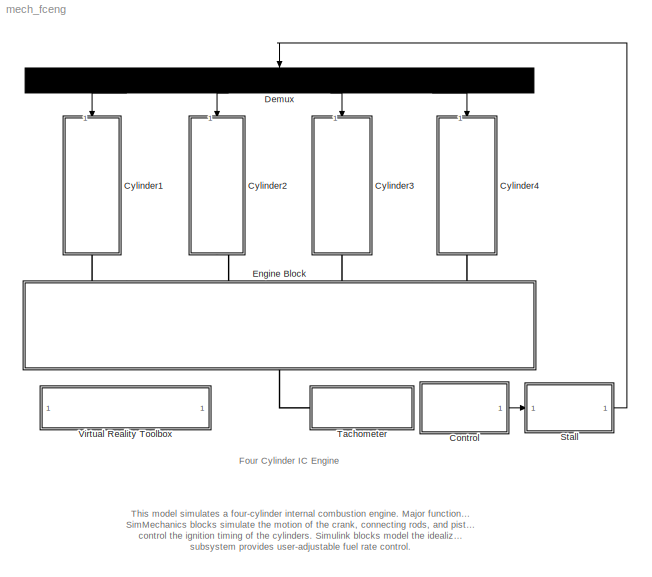
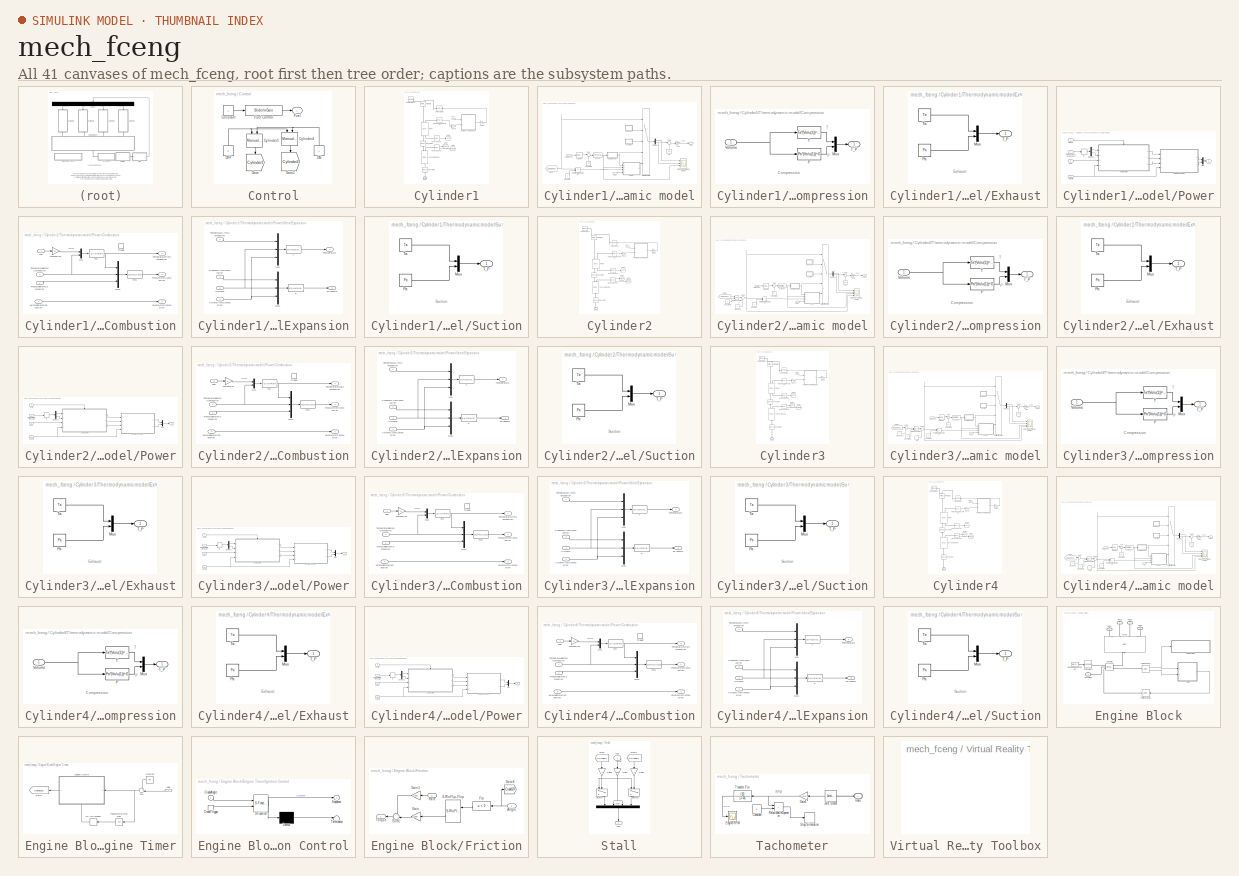
[diagram: thumbnail index - all 41 canvases of the model, root first then tree order]
MODEL mech_fceng
KIND model
CONFIG InitFcn = mech_slider_open(gcs);
CONFIG PreLoadFcn = mech_fceng_init;load mech_fceng_images;
BLOCK [SubSystem] Control
  MinAlgLoopOccurrences = off
  Ports = [0, 1]
  RTWSystemCode = Auto
  Tag = OpenMeAtStartUp
  TreatAsAtomicUnit = off
BLOCK [Constant] Control/Constant
BLOCK [Reference] Control/Cylinder1  REF=simulink/Signal\nRouting/Manual Switch
  Ports = [2, 1]
  ShowPortLabels = on
  SourceBlock = simulink/Signal\nRouting/Manual Switch
  SourceType = Manual Switch
  action = 0
  sw = 0
BLOCK [Reference] Control/Cylinder4  REF=simulink/Signal\nRouting/Manual Switch
  Ports = [2, 1]
  ShowPortLabels = on
  SourceBlock = simulink/Signal\nRouting/Manual Switch
  SourceType = Manual Switch
  action = 0
  sw = 0
BLOCK [Outport] Control/Fuel
  BusOutputAsStruct = off
  IconDisplay = Port number
BLOCK [Reference] Control/Fuel Control  REF=simulink/Math\nOperations/Slider\nGain
  Ports = [1, 1]
  ShowPortLabels = on
  SourceBlock = simulink/Math\nOperations/Slider\nGain
  SourceType = Slider Gain
  Tag = 674   438   332   100
  gain = 2
  high = 4
  low = 0
BLOCK [Goto] Control/Goto
  DialogController = Simulink.DDGSource
  GotoTag = Cylinder1
  TagVisibility = global
BLOCK [Goto] Control/Goto1
  DialogController = Simulink.DDGSource
  GotoTag = Cylinder2
  TagVisibility = global
BLOCK [Constant] Control/OFF
  Value = 0
BLOCK [Constant] Control/ON
  Value = -1
BLOCK [SubSystem] Cylinder1
  MaskDisplay = image(crodassm);
  MaskIconFrame = on
  MaskIconOpaque = on
  MaskIconRotate = none
  MaskIconUnits = autoscale
  MinAlgLoopOccurrences = off
  Ports = [1, 0, 0, 0, 0, 0, 1]
  RTWSystemCode = Auto
  TreatAsAtomicUnit = off
BLOCK [Reference] Cylinder1/Body Sensor  REF=mblibv1/Sensors & \nActuators/Body Sensor
  Acceleration = off
  AccelerationUnits = m/s^2
  ActiveIO = on
  Angle = on
  AngleUnits = deg
  ArcAcceleration = off
  ArcAccelerationUnits = deg/s^2
  ArcVelocity = off
  ArcVelocityUnits = deg/s
  ClassName = BodySensor
  CoordPosition = on
  CoordPositionUnits = m
  DialogClass = MechanicalSensorBlock
  Muxed = on
  Opaque = on
  OutputVector = [1]
  PhysicalDomain = Mechanical
  PortType = blob
  Ports = [0, 1, 0, 0, 0, 1]
  Pose = off
  Quaternion = on
  QuaternionDDT = off
  QuaternionDT = off
  QuaternionUnits = off
  ReferenceFrame = Absolute (World)
  ShowPortLabels = on
  SourceBlock = mblibv1/Sensors & \nActuators/Body Sensor
  SourceType = msb
  Velocity = off
  VelocityUnits = m/s
  Width = 3
BLOCK [Reference] Cylinder1/Body Sensor1  REF=mblibv1/Sensors & \nActuators/Body Sensor
  Acceleration = off
  AccelerationUnits = m/s^2
  ActiveIO = on
  Angle = on
  AngleUnits = deg
  ArcAcceleration = off
  ArcAccelerationUnits = deg/s^2
  ArcVelocity = off
  ArcVelocityUnits = deg/s
  ClassName = BodySensor
  CoordPosition = on
  CoordPositionUnits = m
  DialogClass = MechanicalSensorBlock
  Muxed = off
  Opaque = on
  OutputVector = [ 3 9 ]
  PhysicalDomain = Mechanical
  PortType = blob
  Ports = [0, 2, 0, 0, 0, 1]
  Pose = on
  Quaternion = on
  QuaternionDDT = off
  QuaternionDT = off
  QuaternionUnits = off
  ReferenceFrame = Absolute (World)
  ShowPortLabels = on
  SourceBlock = mblibv1/Sensors & \nActuators/Body Sensor
  SourceType = msb
  Velocity = off
  VelocityUnits = m/s
  Width = 12
BLOCK [Reference] Cylinder1/ConnectingRod  REF=mblibv1/Bodies/Body
  CG = Left$CG$[-18 11.35 -2.70]$WORLD$WORLD$cm$[0 0 0]$Euler X-Y-Z$deg$WORLD$false
  ClassName = Body
  Density = 1
  DensityUnits = kg/m^3
  DensityUse = false
  DialogClass = MechanicalBodyBlock
  Inertia = [37007.64 0 -0.01;0 2936.99 7181.27;-0.01 7181.27 34460.53]*1E-7
  InertiaUnits = kg*m^2
  LConnTagsString = CS1
  LeftPortType = workingframe
  Mass = 676.73
  MassUnits = g
  PhysicalDomain = mechanical
  Ports = [0, 0, 0, 0, 0, 1, 2]
  RConnTagsString = CS2|CS3
  RightPortType = workingframe
  Shape = Cylinder
  ShapeDims = [1 1]
  ShapeUnits = m
  ShapeUse = false
  SourceBlock = mblibv1/Bodies/Body
  SourceType = msb
  SubClassName = Unknown
  WorkingFrames = Left$CS1$[-18 4.24 -4.24]$WORLD$WORLD$cm$[0 0 0]$Euler X-Y-Z$deg$WORLD$true#Right$CS2$[-18 23.79 0]$WORLD$WORLD$cm$[0 0 0]$Euler X-Y-Z$deg$WORLD$true#Right$CS3$[-18 4.24 -4.24]$WORLD$WORLD$cm$[0 0 0]$Euler X-Y-Z$deg$WORLD$true
BLOCK [Reference] Cylinder1/Engine Block  REF=mblibv1/Bodies/Ground
  ClassName = Ground
  CoordPosition = [-13.23 23.79 0]
  CoordPositionUnits = cm
  DialogClass = GroundBlock
  LeftPortType = env
  MachineId = [0 0]
  Opaque = on
  PhysicalDomain = Mechanical
  Ports = [0, 0, 0, 0, 0, 0, 1]
  RightPortType = workingframe
  ShowEnvPort = off
  ShowPortLabels = on
  SourceBlock = mblibv1/Bodies/Ground
  SourceType = msb
  StateVectorMgrId = -1
  UserData = DataTag0
  UserDataPersistent = on
BLOCK [Inport] Cylinder1/Fuel
  IconDisplay = Port number
  LatchInput = off
  Port = 1
BLOCK [Goto] Cylinder1/Goto1
  DialogController = Simulink.DDGSource
  GotoTag = CR1R
  TagVisibility = global
BLOCK [Goto] Cylinder1/Goto7
  DialogController = Simulink.DDGSource
  GotoTag = CR1T
  TagVisibility = global
BLOCK [Goto] Cylinder1/Goto8
  DialogController = Simulink.DDGSource
  GotoTag = P1T
  TagVisibility = global
BLOCK [Reference] Cylinder1/Joint Actuator  REF=mblibv1/Sensors & \nActuators/Joint Actuator
  AccelerationUnits = m/s^2
  ActiveIO = on
  ActuationStyle = Force
  AngleUnits = deg
  ArcAccelerationUnits = deg/s^2
  ArcVelocityUnits = deg/s
  ClassName = JointActuator
  CoordPositionUnits = m
  DialogClass = MechanicalActuatorBlock
  ForceUnits = N
  Opaque = on
  PhysicalDomain = Mechanical
  PortType = blob
  Ports = [1, 0, 0, 0, 0, 0, 1]
  Primitive = P1
  ReferenceFrame = Absolute (INERTIAL)
  ShowPortLabels = on
  SourceBlock = mblibv1/Sensors & \nActuators/Joint Actuator
  SourceType = msb
  TorqueUnits = N-m
  VelocityUnits = m/s
  Width = 1
BLOCK [Reference] Cylinder1/Piston  REF=mblibv1/Bodies/Body
  CG = Left$CG$[-18 24.51 0]$WORLD$WORLD$cm$[0 0 0]$Euler X-Y-Z$deg$WORLD$false
  ClassName = Body
  Density = 1
  DensityUnits = kg/m^3
  DensityUse = false
  DialogClass = MechanicalBodyBlock
  Inertia = [39798.30 0.06 -0.01;0.06 49173.25 -0.04;-0.01 -0.04 39108.48]*1E-7
  InertiaUnits = kg*m^2
  LConnTagsString = CS1|CS3
  LeftPortType = workingframe
  Mass = 3490.25
  MassUnits = g
  PhysicalDomain = mechanical
  Ports = [0, 0, 0, 0, 0, 2, 2]
  RConnTagsString = CS2|CS4
  RightPortType = workingframe
  Shape = Cylinder
  ShapeDims = [1 1]
  ShapeUnits = m
  ShapeUse = false
  SourceBlock = mblibv1/Bodies/Body
  SourceType = msb
  SubClassName = Unknown
  WorkingFrames = Left$CS1$[-18 23.79 0]$WORLD$WORLD$cm$[0 0 0]$Euler X-Y-Z$deg$WORLD$true#Right$CS2$[-13.23 23.79 0]$WORLD$WORLD$cm$[0 0 0]$Euler X-Y-Z$deg$WORLD$true#Left$CS3$[-18 23.79 0]$WORLD$WORLD$cm$[0 0 0]$Euler X-Y-Z$deg$WORLD$true#Right$CS4$[-18 23.79+4 0]$WORLD$WORLD$cm$[0 0 0]$Euler X-Y-Z$deg$WORLD$true
BLOCK [Reference] Cylinder1/Piston Head\nPosition  REF=mblibv1/Sensors & \nActuators/Body Sensor
  Acceleration = off
  AccelerationUnits = m/s^2
  ActiveIO = on
  Angle = on
  AngleUnits = deg
  ArcAcceleration = off
  ArcAccelerationUnits = deg/s^2
  ArcVelocity = off
  ArcVelocityUnits = deg/s
  ClassName = BodySensor
  CoordPosition = on
  CoordPositionUnits = m
  DialogClass = MechanicalSensorBlock
  Muxed = on
  Opaque = on
  OutputVector = [1]
  PhysicalDomain = Mechanical
  PortType = blob
  Ports = [0, 1, 0, 0, 0, 1]
  Pose = off
  Quaternion = on
  QuaternionDDT = off
  QuaternionDT = off
  QuaternionUnits = off
  ReferenceFrame = Absolute (World)
  ShowPortLabels = on
  SourceBlock = mblibv1/Sensors & \nActuators/Body Sensor
  SourceType = msb
  Velocity = off
  VelocityUnits = m/s
  Width = 3
BLOCK [Reference] Cylinder1/Prismatic  REF=mblibv1/Joints/Prismatic
  ClassName = Joint
  CutJoint = off
  DialogClass = JointBlock
  LConnTagsString = __newl0|SA1
  LeftPortType = blob
  MarkAsCut = off
  NumSAPorts = 1
  PhysicalDomain = mechanical
  Ports = [0, 0, 0, 0, 0, 2, 1]
  PrimitiveProps = P1$WORLD$[0 1 0]$prismatic
  Primitives = prismatic
  RConnTagsString = __newr0
  RightPortType = blob
  SourceBlock = mblibv1/Joints/Prismatic
  SourceType = msb
  SubClassName = Unknown
BLOCK [Reference] Cylinder1/Revolute1  REF=mblibv1/Joints/Revolute
  ClassName = Joint
  CutJoint = off
  DialogClass = JointBlock
  LConnTagsString = __newl0
  LeftPortType = blob
  MarkAsCut = off
  NumSAPorts = 0
  PhysicalDomain = mechanical
  Ports = [0, 0, 0, 0, 0, 1, 1]
  PrimitiveProps = R1$WORLD$[1 0 0]$revolute
  Primitives = revolute
  RConnTagsString = __newr0
  RightPortType = blob
  SourceBlock = mblibv1/Joints/Revolute
  SourceType = msb
  SubClassName = Unknown
BLOCK [Reference] Cylinder1/Revolute2  REF=mblibv1/Joints/Revolute
  ClassName = Joint
  CutJoint = on
  DialogClass = JointBlock
  LConnTagsString = __newl0
  LeftPortType = blob
  MarkAsCut = off
  NumSAPorts = 0
  PhysicalDomain = mechanical
  Ports = [0, 0, 0, 0, 0, 1, 1]
  PrimitiveProps = R1$WORLD$[1 0 0]$revolute
  Primitives = revolute
  RConnTagsString = __newr0
  RightPortType = blob
  SourceBlock = mblibv1/Joints/Revolute
  SourceType = msb
  SubClassName = Unknown
BLOCK [PMIOPort] Cylinder1/Rod1
  Port = 1
  Side = Right
BLOCK [SubSystem] Cylinder1/Thermodynamic model
  MinAlgLoopOccurrences = off
  Ports = [2, 1]
  RTWSystemCode = Auto
  TreatAsAtomicUnit = off
BLOCK [Gain] Cylinder1/Thermodynamic model/Area
  Gain = -pi*R*R
BLOCK [SubSystem] Cylinder1/Thermodynamic model/Compression
  MinAlgLoopOccurrences = off
  Ports = [1, 1]
  RTWSystemCode = Auto
  TreatAsAtomicUnit = off
BLOCK [Mux] Cylinder1/Thermodynamic model/Compression/Mux
  DisplayOption = bar
  Inputs = 2
  Ports = [2, 1]
BLOCK [Fcn] Cylinder1/Thermodynamic model/Compression/P
  Expr = Pa*(Vo/u(1))^G
BLOCK [Fcn] Cylinder1/Thermodynamic model/Compression/T
  Expr = Ta*(Vo/u(1))^(G-1)
BLOCK [Outport] Cylinder1/Thermodynamic model/Compression/T_P
  BusOutputAsStruct = off
  IconDisplay = Port number
BLOCK [Inport] Cylinder1/Thermodynamic model/Compression/Volume
  IconDisplay = Port number
  LatchInput = off
  Port = 1
BLOCK [Constant] Cylinder1/Thermodynamic model/Constant
  Value = 4
BLOCK [Constant] Cylinder1/Thermodynamic model/Constant1
  Value = 31
BLOCK [Fcn] Cylinder1/Thermodynamic model/CylnVol
  Expr = R*R*pi*u(1)
BLOCK [Demux] Cylinder1/Thermodynamic model/Demux1
  Outputs = 2
  Ports = [1, 2]
BLOCK [SubSystem] Cylinder1/Thermodynamic model/Exhaust
  MinAlgLoopOccurrences = off
  Ports = [0, 1]
  RTWSystemCode = Auto
  TreatAsAtomicUnit = on
BLOCK [Mux] Cylinder1/Thermodynamic model/Exhaust/Mux
  DisplayOption = bar
  Inputs = 2
  Ports = [2, 1]
BLOCK [Constant] Cylinder1/Thermodynamic model/Exhaust/Pa
  Value = Pa
BLOCK [Outport] Cylinder1/Thermodynamic model/Exhaust/T_P
  BusOutputAsStruct = off
  IconDisplay = Port number
BLOCK [Constant] Cylinder1/Thermodynamic model/Exhaust/Ta
  Value = Ta
BLOCK [Outport] Cylinder1/Thermodynamic model/Force
  BusOutputAsStruct = off
  IconDisplay = Port number
BLOCK [From] Cylinder1/Thermodynamic model/From
  CloseFcn = tagdialog Close
  DialogController = Simulink.DDGSource
  GotoTag = Sequence
BLOCK [Inport] Cylinder1/Thermodynamic model/Fuel
  IconDisplay = Port number
  LatchInput = off
  Port = 1
BLOCK [MultiPortSwitch] Cylinder1/Thermodynamic model/Multiport\nSwitch
  Ports = [5, 1]
  SaturateOnIntegerOverflow = off
BLOCK [Constant] Cylinder1/Thermodynamic model/Pa
  Value = Pa
BLOCK [Scope] Cylinder1/Thermodynamic model/Piston1\nThermodynamics
  DataFormat = StructureWithTime
  NumInputPorts = 3
  Ports = [3]
  YMax = 425~240000~1050
  YMin = 25~0~50
BLOCK [Inport] Cylinder1/Thermodynamic model/PistonPos
  IconDisplay = Port number
  LatchInput = off
  Port = 2
BLOCK [SubSystem] Cylinder1/Thermodynamic model/Power
  MinAlgLoopOccurrences = off
  Ports = [4, 1]
  RTWSystemCode = Auto
  TreatAsAtomicUnit = off
BLOCK [SubSystem] Cylinder1/Thermodynamic model/Power/Combustion
  MinAlgLoopOccurrences = off
  Ports = [4, 3, 0, 1]
  RTWSystemCode = Auto
  TreatAsAtomicUnit = on
BLOCK [Fcn] Cylinder1/Thermodynamic model/Power/Combustion/Fcn
  Expr = u(1)/(AirRo*Vtdc*Cv)+u(2)
BLOCK [Fcn] Cylinder1/Thermodynamic model/Power/Combustion/Fcn1
  Expr = u(3)*u(1)/u(2)
BLOCK [Inport] Cylinder1/Thermodynamic model/Power/Combustion/Fuel
  IconDisplay = Port number
  LatchInput = off
  Port = 3
BLOCK [Mux] Cylinder1/Thermodynamic model/Power/Combustion/Mux
  DisplayOption = bar
  Inputs = 2
  Ports = [2, 1]
BLOCK [Mux] Cylinder1/Thermodynamic model/Power/Combustion/Mux1
  DisplayOption = bar
  Inputs = 3
  Ports = [3, 1]
BLOCK [Outport] Cylinder1/Thermodynamic model/Power/Combustion/PressureAfterCombustion
  BusOutputAsStruct = off
  IconDisplay = Port number
  Port = 2
BLOCK [Inport] Cylinder1/Thermodynamic model/Power/Combustion/PressureBeforeCombustion
  IconDisplay = Port number
  LatchInput = off
  Port = 2
BLOCK [Outport] Cylinder1/Thermodynamic model/Power/Combustion/TemperatureAfterCombustion
  BusOutputAsStruct = off
  IconDisplay = Port number
BLOCK [Inport] Cylinder1/Thermodynamic model/Power/Combustion/TemperatureBeforeCombustion
  IconDisplay = Port number
  LatchInput = off
  Port = 1
BLOCK [TriggerPort] Cylinder1/Thermodynamic model/Power/Combustion/Trigger
  Ports = []
  ZeroCross = off
BLOCK [Outport] Cylinder1/Thermodynamic model/Power/Combustion/VolumeAfterCombustion
  BusOutputAsStruct = off
  IconDisplay = Port number
  Port = 3
BLOCK [Inport] Cylinder1/Thermodynamic model/Power/Combustion/VolumeBeforeCombustion
  IconDisplay = Port number
  LatchInput = off
  Port = 4
BLOCK [Gain] Cylinder1/Thermodynamic model/Power/Combustion/combustion
  Gain = Q
BLOCK [Demux] Cylinder1/Thermodynamic model/Power/Demux1
  Outputs = 2
  Ports = [1, 2]
BLOCK [Inport] Cylinder1/Thermodynamic model/Power/Fuel
  IconDisplay = Port number
  LatchInput = off
  Port = 4
BLOCK [InitialCondition] Cylinder1/Thermodynamic model/Power/IC
  Value = [Ta;Pa]
BLOCK [SubSystem] Cylinder1/Thermodynamic model/Power/IdealExpansion
  MinAlgLoopOccurrences = off
  Ports = [4, 2]
  RTWSystemCode = Auto
  TreatAsAtomicUnit = on
BLOCK [Outport] Cylinder1/Thermodynamic model/Power/IdealExpansion/FPressure
  BusOutputAsStruct = off
  IconDisplay = Port number
  Port = 2
BLOCK [Outport] Cylinder1/Thermodynamic model/Power/IdealExpansion/FTemperature
  BusOutputAsStruct = off
  IconDisplay = Port number
BLOCK [Inport] Cylinder1/Thermodynamic model/Power/IdealExpansion/IVolume
  IconDisplay = Port number
  LatchInput = off
  Port = 4
BLOCK [Mux] Cylinder1/Thermodynamic model/Power/IdealExpansion/Mux
  DisplayOption = bar
  Inputs = 3
  Ports = [3, 1]
BLOCK [Mux] Cylinder1/Thermodynamic model/Power/IdealExpansion/Mux1
  DisplayOption = bar
  Inputs = 3
  Ports = [3, 1]
BLOCK [Fcn] Cylinder1/Thermodynamic model/Power/IdealExpansion/P
  Expr = u(1)*(u(3)/u(2))^G
BLOCK [Inport] Cylinder1/Thermodynamic model/Power/IdealExpansion/PressureAfterCombustion
  IconDisplay = Port number
  LatchInput = off
  Port = 2
BLOCK [Fcn] Cylinder1/Thermodynamic model/Power/IdealExpansion/T
  Expr = u(1)*(u(3)/u(2))^(G-1)
BLOCK [Inport] Cylinder1/Thermodynamic model/Power/IdealExpansion/TemperatureAfterCombustion
  IconDisplay = Port number
  LatchInput = off
  Port = 1
BLOCK [Inport] Cylinder1/Thermodynamic model/Power/IdealExpansion/VolumeAfterCombustion
  IconDisplay = Port number
  LatchInput = off
  Port = 3
BLOCK [Mux] Cylinder1/Thermodynamic model/Power/Mux
  DisplayOption = bar
  Inputs = 2
  Ports = [2, 1]
BLOCK [Inport] Cylinder1/Thermodynamic model/Power/Spark
  IconDisplay = Port number
  LatchInput = off
  Port = 3
BLOCK [Outport] Cylinder1/Thermodynamic model/Power/T_P
  BusOutputAsStruct = off
  IconDisplay = Port number
BLOCK [Inport] Cylinder1/Thermodynamic model/Power/Temperature_Pressure
  IconDisplay = Port number
  LatchInput = off
  Port = 1
BLOCK [Inport] Cylinder1/Thermodynamic model/Power/Volume
  IconDisplay = Port number
  LatchInput = off
  Port = 2
BLOCK [RelationalOperator] Cylinder1/Thermodynamic model/Relational\nOperator
  Operator = ==
  ZeroCross = off
BLOCK [Selector] Cylinder1/Thermodynamic model/Selector
  Elements = 2
  InputPortWidth = 3
  Ports = [1, 1]
BLOCK [SubSystem] Cylinder1/Thermodynamic model/Suction
  MinAlgLoopOccurrences = off
  Ports = [0, 1]
  RTWSystemCode = Auto
  TreatAsAtomicUnit = on
BLOCK [Mux] Cylinder1/Thermodynamic model/Suction/Mux
  DisplayOption = bar
  Inputs = 2
  Ports = [2, 1]
BLOCK [Constant] Cylinder1/Thermodynamic model/Suction/Pa
  Value = Pa
BLOCK [Outport] Cylinder1/Thermodynamic model/Suction/T_P
  BusOutputAsStruct = off
  IconDisplay = Port number
BLOCK [Constant] Cylinder1/Thermodynamic model/Suction/Ta
  Value = Ta
BLOCK [Sum] Cylinder1/Thermodynamic model/Sum
  IconShape = round
  Inputs = |-+
  Ports = [2, 1]
BLOCK [Sum] Cylinder1/Thermodynamic model/Sum3
  IconShape = round
  Inputs = |+-
  Ports = [2, 1]
BLOCK [Gain] Cylinder1/gmf2N
  Gain = 9.81/1000
BLOCK [Gain] Cylinder1/m2cm
  Gain = 100
BLOCK [SubSystem] Cylinder2
  MaskDisplay = image(crodassmb);
  MaskIconFrame = on
  MaskIconOpaque = on
  MaskIconRotate = none
  MaskIconUnits = autoscale
  MinAlgLoopOccurrences = off
  Ports = [1, 0, 0, 0, 0, 0, 1]
  RTWSystemCode = Auto
  TreatAsAtomicUnit = off
BLOCK [Reference] Cylinder2/Body Sensor  REF=mblibv1/Sensors & \nActuators/Body Sensor
  Acceleration = off
  AccelerationUnits = m/s^2
  ActiveIO = on
  Angle = on
  AngleUnits = deg
  ArcAcceleration = off
  ArcAccelerationUnits = deg/s^2
  ArcVelocity = off
  ArcVelocityUnits = deg/s
  ClassName = BodySensor
  CoordPosition = on
  CoordPositionUnits = m
  DialogClass = MechanicalSensorBlock
  Muxed = on
  Opaque = on
  OutputVector = [1]
  PhysicalDomain = Mechanical
  PortType = blob
  Ports = [0, 1, 0, 0, 0, 1]
  Pose = off
  Quaternion = on
  QuaternionDDT = off
  QuaternionDT = off
  QuaternionUnits = off
  ReferenceFrame = Absolute (World)
  ShowPortLabels = on
  SourceBlock = mblibv1/Sensors & \nActuators/Body Sensor
  SourceType = msb
  Velocity = off
  VelocityUnits = m/s
  Width = 3
BLOCK [Reference] Cylinder2/Body Sensor1  REF=mblibv1/Sensors & \nActuators/Body Sensor
  Acceleration = off
  AccelerationUnits = m/s^2
  ActiveIO = on
  Angle = on
  AngleUnits = deg
  ArcAcceleration = off
  ArcAccelerationUnits = deg/s^2
  ArcVelocity = off
  ArcVelocityUnits = deg/s
  ClassName = BodySensor
  CoordPosition = on
  CoordPositionUnits = m
  DialogClass = MechanicalSensorBlock
  Muxed = off
  Opaque = on
  OutputVector = [ 3 9 ]
  PhysicalDomain = Mechanical
  PortType = blob
  Ports = [0, 2, 0, 0, 0, 1]
  Pose = on
  Quaternion = on
  QuaternionDDT = off
  QuaternionDT = off
  QuaternionUnits = off
  ReferenceFrame = Absolute (World)
  ShowPortLabels = on
  SourceBlock = mblibv1/Sensors & \nActuators/Body Sensor
  SourceType = msb
  Velocity = off
  VelocityUnits = m/s
  Width = 12
BLOCK [Reference] Cylinder2/ConnectingRod  REF=mblibv1/Bodies/Body
  CG = Left$CG$[-6 2.87 2.70]$WORLD$WORLD$cm$[0 0 0]$Euler X-Y-Z$deg$WORLD$false
  ClassName = Body
  Density = 1
  DensityUnits = kg/m^3
  DensityUse = false
  DialogClass = MechanicalBodyBlock
  Inertia = [37007.64 0 -0.01;0 2936.99 7181.27;-0.01 7181.27 34460.53]*1E-7
  InertiaUnits = kg*m^2
  LConnTagsString = CS1
  LeftPortType = workingframe
  Mass = 676.73
  MassUnits = g
  PhysicalDomain = mechanical
  Ports = [0, 0, 0, 0, 0, 1, 2]
  RConnTagsString = CS2|CS3
  RightPortType = workingframe
  Shape = Cylinder
  ShapeDims = [1 1]
  ShapeUnits = m
  ShapeUse = false
  SourceBlock = mblibv1/Bodies/Body
  SourceType = msb
  SubClassName = Unknown
  WorkingFrames = Left$CS1$[-6 -4.24 4.24]$WORLD$WORLD$cm$[0 0 0]$Euler X-Y-Z$deg$WORLD$true#Right$CS2$[-6 15.30 0]$WORLD$WORLD$cm$[0 0 0]$Euler X-Y-Z$deg$WORLD$true#Right$CS3$[-6 -4.24 4.24]$WORLD$WORLD$cm$[0 0 0]$Euler X-Y-Z$deg$WORLD$true
BLOCK [Reference] Cylinder2/Engine Block  REF=mblibv1/Bodies/Ground
  ClassName = Ground
  CoordPosition = [-1 15.30 0]
  CoordPositionUnits = cm
  DialogClass = GroundBlock
  LeftPortType = env
  MachineId = [0 0]
  Opaque = on
  PhysicalDomain = Mechanical
  Ports = [0, 0, 0, 0, 0, 0, 1]
  RightPortType = workingframe
  ShowEnvPort = off
  ShowPortLabels = on
  SourceBlock = mblibv1/Bodies/Ground
  SourceType = msb
  StateVectorMgrId = -1
  UserData = DataTag1
  UserDataPersistent = on
BLOCK [Inport] Cylinder2/Fuel
  IconDisplay = Port number
  LatchInput = off
  Port = 1
BLOCK [Goto] Cylinder2/Goto1
  DialogController = Simulink.DDGSource
  GotoTag = CR2R
  TagVisibility = global
BLOCK [Goto] Cylinder2/Goto7
  DialogController = Simulink.DDGSource
  GotoTag = CR2T
  TagVisibility = global
BLOCK [Goto] Cylinder2/Goto8
  DialogController = Simulink.DDGSource
  GotoTag = P2T
  TagVisibility = global
BLOCK [Reference] Cylinder2/Joint Actuator  REF=mblibv1/Sensors & \nActuators/Joint Actuator
  AccelerationUnits = m/s^2
  ActiveIO = on
  ActuationStyle = Force
  AngleUnits = deg
  ArcAccelerationUnits = deg/s^2
  ArcVelocityUnits = deg/s
  ClassName = JointActuator
  CoordPositionUnits = m
  DialogClass = MechanicalActuatorBlock
  ForceUnits = N
  Opaque = on
  PhysicalDomain = Mechanical
  PortType = blob
  Ports = [1, 0, 0, 0, 0, 0, 1]
  Primitive = P1
  ReferenceFrame = Absolute (INERTIAL)
  ShowPortLabels = on
  SourceBlock = mblibv1/Sensors & \nActuators/Joint Actuator
  SourceType = msb
  TorqueUnits = N-m
  VelocityUnits = m/s
  Width = 1
BLOCK [Reference] Cylinder2/Piston  REF=mblibv1/Bodies/Body
  CG = Left$CG$[-6 16.02 0]$WORLD$WORLD$cm$[0 0 0]$Euler X-Y-Z$deg$WORLD$false
  ClassName = Body
  Density = 1
  DensityUnits = kg/m^3
  DensityUse = false
  DialogClass = MechanicalBodyBlock
  Inertia = [39798.30 0.06 -0.01;0.06 49173.25 -0.04;-0.01 -0.04 39108.48]*1E-7
  InertiaUnits = kg*m^2
  LConnTagsString = CS1|CS3
  LeftPortType = workingframe
  Mass = 3490.25
  MassUnits = g
  PhysicalDomain = mechanical
  Ports = [0, 0, 0, 0, 0, 2, 2]
  RConnTagsString = CS2|CS4
  RightPortType = workingframe
  Shape = Cylinder
  ShapeDims = [1 1]
  ShapeUnits = m
  ShapeUse = false
  SourceBlock = mblibv1/Bodies/Body
  SourceType = msb
  SubClassName = Unknown
  WorkingFrames = Left$CS1$[-6 15.30 0]$WORLD$WORLD$cm$[0 0 0]$Euler X-Y-Z$deg$WORLD$true#Right$CS2$[-1 15.30 0]$WORLD$WORLD$cm$[0 0 0]$Euler X-Y-Z$deg$WORLD$true#Left$CS3$[-6 15.30 0]$WORLD$WORLD$cm$[0 0 0]$Euler X-Y-Z$deg$WORLD$true#Right$CS4$[-6 19.30 0]$WORLD$WORLD$cm$[0 0 0]$Euler X-Y-Z$deg$WORLD$true
BLOCK [Reference] Cylinder2/Piston Head\nPosition  REF=mblibv1/Sensors & \nActuators/Body Sensor
  Acceleration = off
  AccelerationUnits = m/s^2
  ActiveIO = on
  Angle = on
  AngleUnits = deg
  ArcAcceleration = off
  ArcAccelerationUnits = deg/s^2
  ArcVelocity = off
  ArcVelocityUnits = deg/s
  ClassName = BodySensor
  CoordPosition = on
  CoordPositionUnits = m
  DialogClass = MechanicalSensorBlock
  Muxed = on
  Opaque = on
  OutputVector = [1]
  PhysicalDomain = Mechanical
  PortType = blob
  Ports = [0, 1, 0, 0, 0, 1]
  Pose = off
  Quaternion = on
  QuaternionDDT = off
  QuaternionDT = off
  QuaternionUnits = off
  ReferenceFrame = Absolute (World)
  ShowPortLabels = on
  SourceBlock = mblibv1/Sensors & \nActuators/Body Sensor
  SourceType = msb
  Velocity = off
  VelocityUnits = m/s
  Width = 3
BLOCK [Reference] Cylinder2/Prismatic1  REF=mblibv1/Joints/Prismatic
  ClassName = Joint
  CutJoint = off
  DialogClass = JointBlock
  LConnTagsString = __newl0|SA1
  LeftPortType = blob
  MarkAsCut = off
  NumSAPorts = 1
  PhysicalDomain = mechanical
  Ports = [0, 0, 0, 0, 0, 2, 1]
  PrimitiveProps = P1$WORLD$[0 1 0]$prismatic
  Primitives = prismatic
  RConnTagsString = __newr0
  RightPortType = blob
  SourceBlock = mblibv1/Joints/Prismatic
  SourceType = msb
  SubClassName = Unknown
BLOCK [Reference] Cylinder2/Revolute3  REF=mblibv1/Joints/Revolute
  ClassName = Joint
  CutJoint = off
  DialogClass = JointBlock
  LConnTagsString = __newl0
  LeftPortType = blob
  MarkAsCut = off
  NumSAPorts = 0
  PhysicalDomain = mechanical
  Ports = [0, 0, 0, 0, 0, 1, 1]
  PrimitiveProps = R1$WORLD$[1 0 0]$revolute
  Primitives = revolute
  RConnTagsString = __newr0
  RightPortType = blob
  SourceBlock = mblibv1/Joints/Revolute
  SourceType = msb
  SubClassName = Unknown
BLOCK [Reference] Cylinder2/Revolute4  REF=mblibv1/Joints/Revolute
  ClassName = Joint
  CutJoint = on
  DialogClass = JointBlock
  LConnTagsString = __newl0
  LeftPortType = blob
  MarkAsCut = off
  NumSAPorts = 0
  PhysicalDomain = mechanical
  Ports = [0, 0, 0, 0, 0, 1, 1]
  PrimitiveProps = R1$WORLD$[1 0 0]$revolute
  Primitives = revolute
  RConnTagsString = __newr0
  RightPortType = blob
  SourceBlock = mblibv1/Joints/Revolute
  SourceType = msb
  SubClassName = Unknown
BLOCK [PMIOPort] Cylinder2/Rod2
  Port = 1
  Side = Right
BLOCK [SubSystem] Cylinder2/Thermodynamic model
  MinAlgLoopOccurrences = off
  Ports = [2, 1]
  RTWSystemCode = Auto
  TreatAsAtomicUnit = off
BLOCK [Constant] Cylinder2/Thermodynamic model/Advance
BLOCK [Gain] Cylinder2/Thermodynamic model/Area
  Gain = -pi*R*R
BLOCK [SubSystem] Cylinder2/Thermodynamic model/Compression
  MinAlgLoopOccurrences = off
  Ports = [1, 1]
  RTWSystemCode = Auto
  TreatAsAtomicUnit = off
BLOCK [Mux] Cylinder2/Thermodynamic model/Compression/Mux
  DisplayOption = bar
  Inputs = 2
  Ports = [2, 1]
BLOCK [Fcn] Cylinder2/Thermodynamic model/Compression/P
  Expr = Pa*(Vo/u(1))^G
BLOCK [Fcn] Cylinder2/Thermodynamic model/Compression/T
  Expr = Ta*(Vo/u(1))^(G-1)
BLOCK [Outport] Cylinder2/Thermodynamic model/Compression/T_P
  BusOutputAsStruct = off
  IconDisplay = Port number
BLOCK [Inport] Cylinder2/Thermodynamic model/Compression/Volume
  IconDisplay = Port number
  LatchInput = off
  Port = 1
BLOCK [Constant] Cylinder2/Thermodynamic model/Constant
  Value = 4
BLOCK [Constant] Cylinder2/Thermodynamic model/Constant1
  Value = 31
BLOCK [Constant] Cylinder2/Thermodynamic model/Constant3
  Value = 4
BLOCK [Fcn] Cylinder2/Thermodynamic model/CylnVol
  Expr = R*R*pi*u(1)
BLOCK [Demux] Cylinder2/Thermodynamic model/Demux1
  Outputs = 2
  Ports = [1, 2]
BLOCK [SubSystem] Cylinder2/Thermodynamic model/Exhaust
  MinAlgLoopOccurrences = off
  Ports = [0, 1]
  RTWSystemCode = Auto
  TreatAsAtomicUnit = on
BLOCK [Mux] Cylinder2/Thermodynamic model/Exhaust/Mux
  DisplayOption = bar
  Inputs = 2
  Ports = [2, 1]
BLOCK [Constant] Cylinder2/Thermodynamic model/Exhaust/Pa
  Value = Pa
BLOCK [Outport] Cylinder2/Thermodynamic model/Exhaust/T_P
  BusOutputAsStruct = off
  IconDisplay = Port number
BLOCK [Constant] Cylinder2/Thermodynamic model/Exhaust/Ta
  Value = Ta
BLOCK [Outport] Cylinder2/Thermodynamic model/Force
  BusOutputAsStruct = off
  IconDisplay = Port number
BLOCK [From] Cylinder2/Thermodynamic model/From1
  CloseFcn = tagdialog Close
  DialogController = Simulink.DDGSource
  GotoTag = Sequence
BLOCK [Inport] Cylinder2/Thermodynamic model/Fuel
  IconDisplay = Port number
  LatchInput = off
  Port = 1
BLOCK [Math] Cylinder2/Thermodynamic model/Math\nFunction
  Operator = mod
  Ports = [2, 1]
BLOCK [MultiPortSwitch] Cylinder2/Thermodynamic model/Multiport\nSwitch
  Ports = [5, 1]
  SaturateOnIntegerOverflow = off
BLOCK [Constant] Cylinder2/Thermodynamic model/Pa
  Value = Pa
BLOCK [Scope] Cylinder2/Thermodynamic model/Piston2\nThermodynamics
  DataFormat = StructureWithTime
  NumInputPorts = 4
  Ports = [4]
  YMax = 160~90000~1100~4
  YMin = 20~0~0~1
BLOCK [Inport] Cylinder2/Thermodynamic model/PistonPos
  IconDisplay = Port number
  LatchInput = off
  Port = 2
BLOCK [SubSystem] Cylinder2/Thermodynamic model/Power
  MinAlgLoopOccurrences = off
  Ports = [4, 1]
  RTWSystemCode = Auto
  TreatAsAtomicUnit = off
BLOCK [SubSystem] Cylinder2/Thermodynamic model/Power/Combustion
  MinAlgLoopOccurrences = off
  Ports = [4, 3, 0, 1]
  RTWSystemCode = Auto
  TreatAsAtomicUnit = on
BLOCK [Fcn] Cylinder2/Thermodynamic model/Power/Combustion/Fcn
  Expr = u(1)/(AirRo*Vtdc*Cv)+u(2)
BLOCK [Fcn] Cylinder2/Thermodynamic model/Power/Combustion/Fcn1
  Expr = u(3)*u(1)/u(2)
BLOCK [Inport] Cylinder2/Thermodynamic model/Power/Combustion/Fuel
  IconDisplay = Port number
  LatchInput = off
  Port = 3
BLOCK [Mux] Cylinder2/Thermodynamic model/Power/Combustion/Mux
  DisplayOption = bar
  Inputs = 2
  Ports = [2, 1]
BLOCK [Mux] Cylinder2/Thermodynamic model/Power/Combustion/Mux1
  DisplayOption = bar
  Inputs = 3
  Ports = [3, 1]
BLOCK [Outport] Cylinder2/Thermodynamic model/Power/Combustion/PressureAfterCombustion
  BusOutputAsStruct = off
  IconDisplay = Port number
  Port = 2
BLOCK [Inport] Cylinder2/Thermodynamic model/Power/Combustion/PressureBeforeCombustion
  IconDisplay = Port number
  LatchInput = off
  Port = 2
BLOCK [Outport] Cylinder2/Thermodynamic model/Power/Combustion/TemperatureAfterCombustion
  BusOutputAsStruct = off
  IconDisplay = Port number
BLOCK [Inport] Cylinder2/Thermodynamic model/Power/Combustion/TemperatureBeforeCombustion
  IconDisplay = Port number
  LatchInput = off
  Port = 1
BLOCK [TriggerPort] Cylinder2/Thermodynamic model/Power/Combustion/Trigger
  Ports = []
  ZeroCross = off
BLOCK [Outport] Cylinder2/Thermodynamic model/Power/Combustion/VolumeAfterCombustion
  BusOutputAsStruct = off
  IconDisplay = Port number
  Port = 3
BLOCK [Inport] Cylinder2/Thermodynamic model/Power/Combustion/VolumeBeforeCombustion
  IconDisplay = Port number
  LatchInput = off
  Port = 4
BLOCK [Gain] Cylinder2/Thermodynamic model/Power/Combustion/combustion
  Gain = Q
BLOCK [Demux] Cylinder2/Thermodynamic model/Power/Demux1
  Outputs = 2
  Ports = [1, 2]
BLOCK [Inport] Cylinder2/Thermodynamic model/Power/Fuel
  IconDisplay = Port number
  LatchInput = off
  Port = 4
BLOCK [InitialCondition] Cylinder2/Thermodynamic model/Power/IC
  Value = [Ta;Pa]
BLOCK [SubSystem] Cylinder2/Thermodynamic model/Power/IdealExpansion
  MinAlgLoopOccurrences = off
  Ports = [4, 2]
  RTWSystemCode = Auto
  TreatAsAtomicUnit = on
BLOCK [Outport] Cylinder2/Thermodynamic model/Power/IdealExpansion/FPressure
  BusOutputAsStruct = off
  IconDisplay = Port number
  Port = 2
BLOCK [Outport] Cylinder2/Thermodynamic model/Power/IdealExpansion/FTemperature
  BusOutputAsStruct = off
  IconDisplay = Port number
BLOCK [Inport] Cylinder2/Thermodynamic model/Power/IdealExpansion/IVolume
  IconDisplay = Port number
  LatchInput = off
  Port = 4
BLOCK [Mux] Cylinder2/Thermodynamic model/Power/IdealExpansion/Mux
  DisplayOption = bar
  Inputs = 3
  Ports = [3, 1]
BLOCK [Mux] Cylinder2/Thermodynamic model/Power/IdealExpansion/Mux1
  DisplayOption = bar
  Inputs = 3
  Ports = [3, 1]
BLOCK [Fcn] Cylinder2/Thermodynamic model/Power/IdealExpansion/P
  Expr = u(1)*(u(3)/u(2))^G
BLOCK [Inport] Cylinder2/Thermodynamic model/Power/IdealExpansion/PressureAfterCombustion
  IconDisplay = Port number
  LatchInput = off
  Port = 2
BLOCK [Fcn] Cylinder2/Thermodynamic model/Power/IdealExpansion/T
  Expr = u(1)*(u(3)/u(2))^(G-1)
BLOCK [Inport] Cylinder2/Thermodynamic model/Power/IdealExpansion/TemperatureAfterCombustion
  IconDisplay = Port number
  LatchInput = off
  Port = 1
BLOCK [Inport] Cylinder2/Thermodynamic model/Power/IdealExpansion/VolumeAfterCombustion
  IconDisplay = Port number
  LatchInput = off
  Port = 3
BLOCK [Mux] Cylinder2/Thermodynamic model/Power/Mux
  DisplayOption = bar
  Inputs = 2
  Ports = [2, 1]
BLOCK [Inport] Cylinder2/Thermodynamic model/Power/Spark
  IconDisplay = Port number
  LatchInput = off
  Port = 3
BLOCK [Outport] Cylinder2/Thermodynamic model/Power/T_P
  BusOutputAsStruct = off
  IconDisplay = Port number
BLOCK [Inport] Cylinder2/Thermodynamic model/Power/Temperature_Pressure
  IconDisplay = Port number
  LatchInput = off
  Port = 1
BLOCK [Inport] Cylinder2/Thermodynamic model/Power/Volume
  IconDisplay = Port number
  LatchInput = off
  Port = 2
BLOCK [RelationalOperator] Cylinder2/Thermodynamic model/Relational\nOperator
  Operator = ==
  ZeroCross = off
BLOCK [Selector] Cylinder2/Thermodynamic model/Selector
  Elements = 2
  InputPortWidth = 3
  Ports = [1, 1]
BLOCK [SubSystem] Cylinder2/Thermodynamic model/Suction
  MinAlgLoopOccurrences = off
  Ports = [0, 1]
  RTWSystemCode = Auto
  TreatAsAtomicUnit = on
BLOCK [Mux] Cylinder2/Thermodynamic model/Suction/Mux
  DisplayOption = bar
  Inputs = 2
  Ports = [2, 1]
BLOCK [Constant] Cylinder2/Thermodynamic model/Suction/Pa
  Value = Pa
BLOCK [Outport] Cylinder2/Thermodynamic model/Suction/T_P
  BusOutputAsStruct = off
  IconDisplay = Port number
BLOCK [Constant] Cylinder2/Thermodynamic model/Suction/Ta
  Value = Ta
BLOCK [Sum] Cylinder2/Thermodynamic model/Sum
  IconShape = round
  Inputs = |-+
  Ports = [2, 1]
BLOCK [Sum] Cylinder2/Thermodynamic model/Sum2
  IconShape = round
  Inputs = |++
  Ports = [2, 1]
BLOCK [Sum] Cylinder2/Thermodynamic model/Sum3
  IconShape = round
  Inputs = |+-
  Ports = [2, 1]
BLOCK [Gain] Cylinder2/gmf2N
  Gain = 9.81/1000
BLOCK [Gain] Cylinder2/m2cm
  Gain = 100
BLOCK [SubSystem] Cylinder3
  MaskDisplay = image(crodassmb);
  MaskIconFrame = on
  MaskIconOpaque = on
  MaskIconRotate = none
  MaskIconUnits = autoscale
  MinAlgLoopOccurrences = off
  Ports = [1, 0, 0, 0, 0, 0, 1]
  RTWSystemCode = Auto
  TreatAsAtomicUnit = off
BLOCK [Reference] Cylinder3/Body Sensor1  REF=mblibv1/Sensors & \nActuators/Body Sensor
  Acceleration = off
  AccelerationUnits = m/s^2
  ActiveIO = on
  Angle = on
  AngleUnits = deg
  ArcAcceleration = off
  ArcAccelerationUnits = deg/s^2
  ArcVelocity = off
  ArcVelocityUnits = deg/s
  ClassName = BodySensor
  CoordPosition = on
  CoordPositionUnits = m
  DialogClass = MechanicalSensorBlock
  Muxed = on
  Opaque = on
  OutputVector = [1]
  PhysicalDomain = Mechanical
  PortType = blob
  Ports = [0, 1, 0, 0, 0, 1]
  Pose = off
  Quaternion = on
  QuaternionDDT = off
  QuaternionDT = off
  QuaternionUnits = off
  ReferenceFrame = Absolute (World)
  ShowPortLabels = on
  SourceBlock = mblibv1/Sensors & \nActuators/Body Sensor
  SourceType = msb
  Velocity = off
  VelocityUnits = m/s
  Width = 3
BLOCK [Reference] Cylinder3/Body Sensor2  REF=mblibv1/Sensors & \nActuators/Body Sensor
  Acceleration = off
  AccelerationUnits = m/s^2
  ActiveIO = on
  Angle = on
  AngleUnits = deg
  ArcAcceleration = off
  ArcAccelerationUnits = deg/s^2
  ArcVelocity = off
  ArcVelocityUnits = deg/s
  ClassName = BodySensor
  CoordPosition = on
  CoordPositionUnits = m
  DialogClass = MechanicalSensorBlock
  Muxed = off
  Opaque = on
  OutputVector = [ 3 9 ]
  PhysicalDomain = Mechanical
  PortType = blob
  Ports = [0, 2, 0, 0, 0, 1]
  Pose = on
  Quaternion = on
  QuaternionDDT = off
  QuaternionDT = off
  QuaternionUnits = off
  ReferenceFrame = Absolute (World)
  ShowPortLabels = on
  SourceBlock = mblibv1/Sensors & \nActuators/Body Sensor
  SourceType = msb
  Velocity = off
  VelocityUnits = m/s
  Width = 12
BLOCK [Reference] Cylinder3/ConnectingRod  REF=mblibv1/Bodies/Body
  CG = Left$CG$[6 2.87 2.70]$WORLD$WORLD$cm$[0 0 0]$Euler X-Y-Z$deg$WORLD$false
  ClassName = Body
  Density = 1
  DensityUnits = kg/m^3
  DensityUse = false
  DialogClass = MechanicalBodyBlock
  Inertia = [37007.64 0 -0.01;0 2936.99 7181.27;-0.01 7181.27 34460.53]*1E-7
  InertiaUnits = kg*m^2
  LConnTagsString = CS1
  LeftPortType = workingframe
  Mass = 676.73
  MassUnits = g
  PhysicalDomain = mechanical
  Ports = [0, 0, 0, 0, 0, 1, 2]
  RConnTagsString = CS2|CS3
  RightPortType = workingframe
  Shape = Cylinder
  ShapeDims = [1 1]
  ShapeUnits = m
  ShapeUse = false
  SourceBlock = mblibv1/Bodies/Body
  SourceType = msb
  SubClassName = Unknown
  WorkingFrames = Left$CS1$[6 -4.24 4.24]$WORLD$WORLD$cm$[0 0 0]$Euler X-Y-Z$deg$WORLD$true#Right$CS2$[6 15.30 0]$WORLD$WORLD$cm$[0 0 0]$Euler X-Y-Z$deg$WORLD$true#Right$CS3$[6 -4.24 4.24]$WORLD$WORLD$cm$[0 0 0]$Euler X-Y-Z$deg$WORLD$true
BLOCK [Reference] Cylinder3/Engine Block  REF=mblibv1/Bodies/Ground
  ClassName = Ground
  CoordPosition = [11 15.30 0]
  CoordPositionUnits = cm
  DialogClass = GroundBlock
  LeftPortType = env
  MachineId = [0 0]
  Opaque = on
  PhysicalDomain = Mechanical
  Ports = [0, 0, 0, 0, 0, 0, 1]
  RightPortType = workingframe
  ShowEnvPort = off
  ShowPortLabels = on
  SourceBlock = mblibv1/Bodies/Ground
  SourceType = msb
  StateVectorMgrId = -1
  UserData = DataTag2
  UserDataPersistent = on
BLOCK [Inport] Cylinder3/Fuel
  IconDisplay = Port number
  LatchInput = off
  Port = 1
BLOCK [Goto] Cylinder3/Goto1
  DialogController = Simulink.DDGSource
  GotoTag = CR3R
  TagVisibility = global
BLOCK [Goto] Cylinder3/Goto7
  DialogController = Simulink.DDGSource
  GotoTag = CR3T
  TagVisibility = global
BLOCK [Goto] Cylinder3/Goto8
  DialogController = Simulink.DDGSource
  GotoTag = P3T
  TagVisibility = global
BLOCK [Reference] Cylinder3/Joint Actuator  REF=mblibv1/Sensors & \nActuators/Joint Actuator
  AccelerationUnits = m/s^2
  ActiveIO = on
  ActuationStyle = Force
  AngleUnits = deg
  ArcAccelerationUnits = deg/s^2
  ArcVelocityUnits = deg/s
  ClassName = JointActuator
  CoordPositionUnits = m
  DialogClass = MechanicalActuatorBlock
  ForceUnits = N
  Opaque = on
  PhysicalDomain = Mechanical
  PortType = blob
  Ports = [1, 0, 0, 0, 0, 0, 1]
  Primitive = P1
  ReferenceFrame = Absolute (INERTIAL)
  ShowPortLabels = on
  SourceBlock = mblibv1/Sensors & \nActuators/Joint Actuator
  SourceType = msb
  TorqueUnits = N-m
  VelocityUnits = m/s
  Width = 1
BLOCK [Reference] Cylinder3/Piston Head\nPosition  REF=mblibv1/Sensors & \nActuators/Body Sensor
  Acceleration = off
  AccelerationUnits = m/s^2
  ActiveIO = on
  Angle = on
  AngleUnits = deg
  ArcAcceleration = off
  ArcAccelerationUnits = deg/s^2
  ArcVelocity = off
  ArcVelocityUnits = deg/s
  ClassName = BodySensor
  CoordPosition = on
  CoordPositionUnits = m
  DialogClass = MechanicalSensorBlock
  Muxed = on
  Opaque = on
  OutputVector = [1]
  PhysicalDomain = Mechanical
  PortType = blob
  Ports = [0, 1, 0, 0, 0, 1]
  Pose = off
  Quaternion = on
  QuaternionDDT = off
  QuaternionDT = off
  QuaternionUnits = off
  ReferenceFrame = Absolute (World)
  ShowPortLabels = on
  SourceBlock = mblibv1/Sensors & \nActuators/Body Sensor
  SourceType = msb
  Velocity = off
  VelocityUnits = m/s
  Width = 3
BLOCK [Reference] Cylinder3/Piston1  REF=mblibv1/Bodies/Body
  CG = Left$CG$[6 16.02 0]$WORLD$WORLD$cm$[0 0 0]$Euler X-Y-Z$deg$WORLD$false
  ClassName = Body
  Density = 1
  DensityUnits = kg/m^3
  DensityUse = false
  DialogClass = MechanicalBodyBlock
  Inertia = [39798.30 0.06 -0.01;0.06 49173.25 -0.04;-0.01 -0.04 39108.48]*1E-7
  InertiaUnits = kg*m^2
  LConnTagsString = CS1|CS3
  LeftPortType = workingframe
  Mass = 3490.25
  MassUnits = g
  PhysicalDomain = mechanical
  Ports = [0, 0, 0, 0, 0, 2, 2]
  RConnTagsString = CS2|CS4
  RightPortType = workingframe
  Shape = Cylinder
  ShapeDims = [1 1]
  ShapeUnits = m
  ShapeUse = false
  SourceBlock = mblibv1/Bodies/Body
  SourceType = msb
  SubClassName = Unknown
  WorkingFrames = Left$CS1$[6 15.30 0]$WORLD$WORLD$cm$[0 0 0]$Euler X-Y-Z$deg$WORLD$true#Right$CS2$[11 15.30 0]$WORLD$WORLD$cm$[0 0 0]$Euler X-Y-Z$deg$WORLD$true#Left$CS3$[6 15.30 0]$WORLD$WORLD$cm$[0 0 0]$Euler X-Y-Z$deg$WORLD$true#Right$CS4$[6 15.30+4 0]$WORLD$WORLD$cm$[0 0 0]$Euler X-Y-Z$deg$WORLD$true
BLOCK [Reference] Cylinder3/Prismatic1  REF=mblibv1/Joints/Prismatic
  ClassName = Joint
  CutJoint = off
  DialogClass = JointBlock
  LConnTagsString = __newl0|SA1
  LeftPortType = blob
  MarkAsCut = off
  NumSAPorts = 1
  PhysicalDomain = mechanical
  Ports = [0, 0, 0, 0, 0, 2, 1]
  PrimitiveProps = P1$WORLD$[0 1 0]$prismatic
  Primitives = prismatic
  RConnTagsString = __newr0
  RightPortType = blob
  SourceBlock = mblibv1/Joints/Prismatic
  SourceType = msb
  SubClassName = Unknown
BLOCK [Reference] Cylinder3/Revolute3  REF=mblibv1/Joints/Revolute
  ClassName = Joint
  CutJoint = off
  DialogClass = JointBlock
  LConnTagsString = __newl0
  LeftPortType = blob
  MarkAsCut = off
  NumSAPorts = 0
  PhysicalDomain = mechanical
  Ports = [0, 0, 0, 0, 0, 1, 1]
  PrimitiveProps = R1$WORLD$[1 0 0]$revolute
  Primitives = revolute
  RConnTagsString = __newr0
  RightPortType = blob
  SourceBlock = mblibv1/Joints/Revolute
  SourceType = msb
  SubClassName = Unknown
BLOCK [Reference] Cylinder3/Revolute4  REF=mblibv1/Joints/Revolute
  ClassName = Joint
  CutJoint = on
  DialogClass = JointBlock
  LConnTagsString = __newl0
  LeftPortType = blob
  MarkAsCut = off
  NumSAPorts = 0
  PhysicalDomain = mechanical
  Ports = [0, 0, 0, 0, 0, 1, 1]
  PrimitiveProps = R1$WORLD$[1 0 0]$revolute
  Primitives = revolute
  RConnTagsString = __newr0
  RightPortType = blob
  SourceBlock = mblibv1/Joints/Revolute
  SourceType = msb
  SubClassName = Unknown
BLOCK [PMIOPort] Cylinder3/Rod3
  Port = 1
  Side = Right
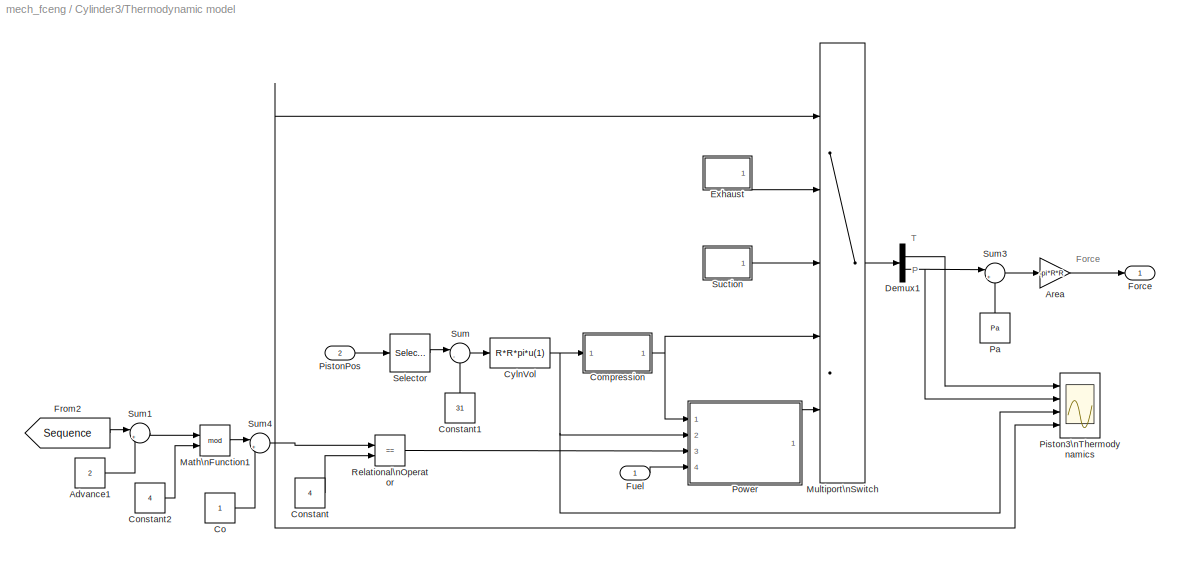
BLOCK [SubSystem] Cylinder3/Thermodynamic model
  MinAlgLoopOccurrences = off
  Ports = [2, 1]
  RTWSystemCode = Auto
  TreatAsAtomicUnit = off
BLOCK [Constant] Cylinder3/Thermodynamic model/Advance1
  Value = 2
BLOCK [Gain] Cylinder3/Thermodynamic model/Area
  Gain = -pi*R*R
BLOCK [Constant] Cylinder3/Thermodynamic model/Co
BLOCK [SubSystem] Cylinder3/Thermodynamic model/Compression
  MinAlgLoopOccurrences = off
  Ports = [1, 1]
  RTWSystemCode = Auto
  TreatAsAtomicUnit = off
BLOCK [Mux] Cylinder3/Thermodynamic model/Compression/Mux
  DisplayOption = bar
  Inputs = 2
  Ports = [2, 1]
BLOCK [Fcn] Cylinder3/Thermodynamic model/Compression/P
  Expr = Pa*(Vo/u(1))^G
BLOCK [Fcn] Cylinder3/Thermodynamic model/Compression/T
  Expr = Ta*(Vo/u(1))^(G-1)
BLOCK [Outport] Cylinder3/Thermodynamic model/Compression/T_P
  BusOutputAsStruct = off
  IconDisplay = Port number
BLOCK [Inport] Cylinder3/Thermodynamic model/Compression/Volume
  IconDisplay = Port number
  LatchInput = off
  Port = 1
BLOCK [Constant] Cylinder3/Thermodynamic model/Constant
  Value = 4
BLOCK [Constant] Cylinder3/Thermodynamic model/Constant1
  Value = 31
BLOCK [Constant] Cylinder3/Thermodynamic model/Constant2
  Value = 4
BLOCK [Fcn] Cylinder3/Thermodynamic model/CylnVol
  Expr = R*R*pi*u(1)
BLOCK [Demux] Cylinder3/Thermodynamic model/Demux1
  Outputs = 2
  Ports = [1, 2]
BLOCK [SubSystem] Cylinder3/Thermodynamic model/Exhaust
  MinAlgLoopOccurrences = off
  Ports = [0, 1]
  RTWSystemCode = Auto
  TreatAsAtomicUnit = on
BLOCK [Mux] Cylinder3/Thermodynamic model/Exhaust/Mux
  DisplayOption = bar
  Inputs = 2
  Ports = [2, 1]
BLOCK [Constant] Cylinder3/Thermodynamic model/Exhaust/Pa
  Value = Pa
BLOCK [Outport] Cylinder3/Thermodynamic model/Exhaust/T_P
  BusOutputAsStruct = off
  IconDisplay = Port number
BLOCK [Constant] Cylinder3/Thermodynamic model/Exhaust/Ta
  Value = Ta
BLOCK [Outport] Cylinder3/Thermodynamic model/Force
  BusOutputAsStruct = off
  IconDisplay = Port number
BLOCK [From] Cylinder3/Thermodynamic model/From2
  CloseFcn = tagdialog Close
  DialogController = Simulink.DDGSource
  GotoTag = Sequence
BLOCK [Inport] Cylinder3/Thermodynamic model/Fuel
  IconDisplay = Port number
  LatchInput = off
  Port = 1
BLOCK [Math] Cylinder3/Thermodynamic model/Math\nFunction1
  Operator = mod
  Ports = [2, 1]
BLOCK [MultiPortSwitch] Cylinder3/Thermodynamic model/Multiport\nSwitch
  Ports = [5, 1]
  SaturateOnIntegerOverflow = off
BLOCK [Constant] Cylinder3/Thermodynamic model/Pa
  Value = Pa
BLOCK [Scope] Cylinder3/Thermodynamic model/Piston3\nThermodynamics
  DataFormat = StructureWithTime
  NumInputPorts = 4
  Ports = [4]
  TimeRange = 20
  YMax = 350~200000~1100~4
  YMin = 25~0~0~1
BLOCK [Inport] Cylinder3/Thermodynamic model/PistonPos
  IconDisplay = Port number
  LatchInput = off
  Port = 2
BLOCK [SubSystem] Cylinder3/Thermodynamic model/Power
  MinAlgLoopOccurrences = off
  Ports = [4, 1]
  RTWSystemCode = Auto
  TreatAsAtomicUnit = off
BLOCK [SubSystem] Cylinder3/Thermodynamic model/Power/Combustion
  MinAlgLoopOccurrences = off
  Ports = [4, 3, 0, 1]
  RTWSystemCode = Auto
  TreatAsAtomicUnit = on
BLOCK [Fcn] Cylinder3/Thermodynamic model/Power/Combustion/Fcn
  Expr = u(1)/(AirRo*Vtdc*Cv)+u(2)
BLOCK [Fcn] Cylinder3/Thermodynamic model/Power/Combustion/Fcn1
  Expr = u(3)*u(1)/u(2)
BLOCK [Inport] Cylinder3/Thermodynamic model/Power/Combustion/Fuel
  IconDisplay = Port number
  LatchInput = off
  Port = 3
BLOCK [Mux] Cylinder3/Thermodynamic model/Power/Combustion/Mux
  DisplayOption = bar
  Inputs = 2
  Ports = [2, 1]
BLOCK [Mux] Cylinder3/Thermodynamic model/Power/Combustion/Mux1
  DisplayOption = bar
  Inputs = 3
  Ports = [3, 1]
BLOCK [Outport] Cylinder3/Thermodynamic model/Power/Combustion/PressureAfterCombustion
  BusOutputAsStruct = off
  IconDisplay = Port number
  Port = 2
BLOCK [Inport] Cylinder3/Thermodynamic model/Power/Combustion/PressureBeforeCombustion
  IconDisplay = Port number
  LatchInput = off
  Port = 2
BLOCK [Outport] Cylinder3/Thermodynamic model/Power/Combustion/TemperatureAfterCombustion
  BusOutputAsStruct = off
  IconDisplay = Port number
BLOCK [Inport] Cylinder3/Thermodynamic model/Power/Combustion/TemperatureBeforeCombustion
  IconDisplay = Port number
  LatchInput = off
  Port = 1
BLOCK [TriggerPort] Cylinder3/Thermodynamic model/Power/Combustion/Trigger
  Ports = []
  ZeroCross = off
BLOCK [Outport] Cylinder3/Thermodynamic model/Power/Combustion/VolumeAfterCombustion
  BusOutputAsStruct = off
  IconDisplay = Port number
  Port = 3
BLOCK [Inport] Cylinder3/Thermodynamic model/Power/Combustion/VolumeBeforeCombustion
  IconDisplay = Port number
  LatchInput = off
  Port = 4
BLOCK [Gain] Cylinder3/Thermodynamic model/Power/Combustion/combustion
  Gain = Q
BLOCK [Demux] Cylinder3/Thermodynamic model/Power/Demux1
  Outputs = 2
  Ports = [1, 2]
BLOCK [Inport] Cylinder3/Thermodynamic model/Power/Fuel
  IconDisplay = Port number
  LatchInput = off
  Port = 4
BLOCK [InitialCondition] Cylinder3/Thermodynamic model/Power/IC
  Value = [Ta;Pa]
BLOCK [SubSystem] Cylinder3/Thermodynamic model/Power/IdealExpansion
  MinAlgLoopOccurrences = off
  Ports = [4, 2]
  RTWSystemCode = Auto
  TreatAsAtomicUnit = on
BLOCK [Outport] Cylinder3/Thermodynamic model/Power/IdealExpansion/FPressure
  BusOutputAsStruct = off
  IconDisplay = Port number
  Port = 2
BLOCK [Outport] Cylinder3/Thermodynamic model/Power/IdealExpansion/FTemperature
  BusOutputAsStruct = off
  IconDisplay = Port number
BLOCK [Inport] Cylinder3/Thermodynamic model/Power/IdealExpansion/IVolume
  IconDisplay = Port number
  LatchInput = off
  Port = 4
BLOCK [Mux] Cylinder3/Thermodynamic model/Power/IdealExpansion/Mux
  DisplayOption = bar
  Inputs = 3
  Ports = [3, 1]
BLOCK [Mux] Cylinder3/Thermodynamic model/Power/IdealExpansion/Mux1
  DisplayOption = bar
  Inputs = 3
  Ports = [3, 1]
BLOCK [Fcn] Cylinder3/Thermodynamic model/Power/IdealExpansion/P
  Expr = u(1)*(u(3)/u(2))^G
BLOCK [Inport] Cylinder3/Thermodynamic model/Power/IdealExpansion/PressureAfterCombustion
  IconDisplay = Port number
  LatchInput = off
  Port = 2
BLOCK [Fcn] Cylinder3/Thermodynamic model/Power/IdealExpansion/T
  Expr = u(1)*(u(3)/u(2))^(G-1)
BLOCK [Inport] Cylinder3/Thermodynamic model/Power/IdealExpansion/TemperatureAfterCombustion
  IconDisplay = Port number
  LatchInput = off
  Port = 1
BLOCK [Inport] Cylinder3/Thermodynamic model/Power/IdealExpansion/VolumeAfterCombustion
  IconDisplay = Port number
  LatchInput = off
  Port = 3
BLOCK [Mux] Cylinder3/Thermodynamic model/Power/Mux
  DisplayOption = bar
  Inputs = 2
  Ports = [2, 1]
BLOCK [Inport] Cylinder3/Thermodynamic model/Power/Spark
  IconDisplay = Port number
  LatchInput = off
  Port = 3
BLOCK [Outport] Cylinder3/Thermodynamic model/Power/T_P
  BusOutputAsStruct = off
  IconDisplay = Port number
BLOCK [Inport] Cylinder3/Thermodynamic model/Power/Temperature_Pressure
  IconDisplay = Port number
  LatchInput = off
  Port = 1
BLOCK [Inport] Cylinder3/Thermodynamic model/Power/Volume
  IconDisplay = Port number
  LatchInput = off
  Port = 2
BLOCK [RelationalOperator] Cylinder3/Thermodynamic model/Relational\nOperator
  Operator = ==
  ZeroCross = off
BLOCK [Selector] Cylinder3/Thermodynamic model/Selector
  Elements = 2
  InputPortWidth = 3
  Ports = [1, 1]
BLOCK [SubSystem] Cylinder3/Thermodynamic model/Suction
  MinAlgLoopOccurrences = off
  Ports = [0, 1]
  RTWSystemCode = Auto
  TreatAsAtomicUnit = on
BLOCK [Mux] Cylinder3/Thermodynamic model/Suction/Mux
  DisplayOption = bar
  Inputs = 2
  Ports = [2, 1]
BLOCK [Constant] Cylinder3/Thermodynamic model/Suction/Pa
  Value = Pa
BLOCK [Outport] Cylinder3/Thermodynamic model/Suction/T_P
  BusOutputAsStruct = off
  IconDisplay = Port number
BLOCK [Constant] Cylinder3/Thermodynamic model/Suction/Ta
  Value = Ta
BLOCK [Sum] Cylinder3/Thermodynamic model/Sum
  IconShape = round
  Inputs = |-+
  Ports = [2, 1]
BLOCK [Sum] Cylinder3/Thermodynamic model/Sum1
  IconShape = round
  Inputs = |++
  Ports = [2, 1]
BLOCK [Sum] Cylinder3/Thermodynamic model/Sum3
  IconShape = round
  Inputs = |+-
  Ports = [2, 1]
BLOCK [Sum] Cylinder3/Thermodynamic model/Sum4
  IconShape = round
  Inputs = |++
  Ports = [2, 1]
BLOCK [Gain] Cylinder3/gmf2N
  Gain = 9.81/1000
BLOCK [Gain] Cylinder3/m2cm
  Gain = 100
BLOCK [SubSystem] Cylinder4
  MaskDisplay = image(crodassm);
  MaskIconFrame = on
  MaskIconOpaque = on
  MaskIconRotate = none
  MaskIconUnits = autoscale
  MinAlgLoopOccurrences = off
  Ports = [1, 0, 0, 0, 0, 0, 1]
  RTWSystemCode = Auto
  TreatAsAtomicUnit = off
BLOCK [Reference] Cylinder4/Body Sensor1  REF=mblibv1/Sensors & \nActuators/Body Sensor
  Acceleration = off
  AccelerationUnits = m/s^2
  ActiveIO = on
  Angle = on
  AngleUnits = deg
  ArcAcceleration = off
  ArcAccelerationUnits = deg/s^2
  ArcVelocity = off
  ArcVelocityUnits = deg/s
  ClassName = BodySensor
  CoordPosition = on
  CoordPositionUnits = m
  DialogClass = MechanicalSensorBlock
  Muxed = on
  Opaque = on
  OutputVector = [1]
  PhysicalDomain = Mechanical
  PortType = blob
  Ports = [0, 1, 0, 0, 0, 1]
  Pose = off
  Quaternion = on
  QuaternionDDT = off
  QuaternionDT = off
  QuaternionUnits = off
  ReferenceFrame = Absolute (INERTIAL)
  ShowPortLabels = on
  SourceBlock = mblibv1/Sensors & \nActuators/Body Sensor
  SourceType = msb
  Velocity = off
  VelocityUnits = m/s
  Width = 3
BLOCK [Reference] Cylinder4/Body Sensor2  REF=mblibv1/Sensors & \nActuators/Body Sensor
  Acceleration = off
  AccelerationUnits = m/s^2
  ActiveIO = on
  Angle = on
  AngleUnits = deg
  ArcAcceleration = off
  ArcAccelerationUnits = deg/s^2
  ArcVelocity = off
  ArcVelocityUnits = deg/s
  ClassName = BodySensor
  CoordPosition = on
  CoordPositionUnits = m
  DialogClass = MechanicalSensorBlock
  Muxed = off
  Opaque = on
  OutputVector = [ 3 9 ]
  PhysicalDomain = Mechanical
  PortType = blob
  Ports = [0, 2, 0, 0, 0, 1]
  Pose = on
  Quaternion = on
  QuaternionDDT = off
  QuaternionDT = off
  QuaternionUnits = off
  ReferenceFrame = Absolute (World)
  ShowPortLabels = on
  SourceBlock = mblibv1/Sensors & \nActuators/Body Sensor
  SourceType = msb
  Velocity = off
  VelocityUnits = m/s
  Width = 12
BLOCK [Reference] Cylinder4/ConnectingRod  REF=mblibv1/Bodies/Body
  CG = Left$CG$[18 11.35 -2.70]$WORLD$WORLD$cm$[0 0 0]$Euler X-Y-Z$deg$WORLD$false
  ClassName = Body
  Density = 1
  DensityUnits = kg/m^3
  DensityUse = false
  DialogClass = MechanicalBodyBlock
  Inertia = [37007.64 0 -0.01;0 2936.99 7181.27;-0.01 7181.27 34460.53]*1E-7
  InertiaUnits = kg*m^2
  LConnTagsString = CS1
  LeftPortType = workingframe
  Mass = 676.73
  MassUnits = g
  PhysicalDomain = mechanical
  Ports = [0, 0, 0, 0, 0, 1, 2]
  RConnTagsString = CS2|CS3
  RightPortType = workingframe
  Shape = Cylinder
  ShapeDims = [1 1]
  ShapeUnits = m
  ShapeUse = false
  SourceBlock = mblibv1/Bodies/Body
  SourceType = msb
  SubClassName = Unknown
  WorkingFrames = Left$CS1$[18 4.24 -4.24]$WORLD$WORLD$cm$[0 0 0]$Euler X-Y-Z$deg$WORLD$true#Right$CS2$[18 23.79 0]$WORLD$WORLD$cm$[0 0 0]$Euler X-Y-Z$deg$WORLD$true#Right$CS3$[18 4.24 -4.24]$WORLD$WORLD$cm$[0 0 0]$Euler X-Y-Z$deg$WORLD$true
BLOCK [Reference] Cylinder4/Engine Block  REF=mblibv1/Bodies/Ground
  ClassName = Ground
  CoordPosition = [23 23.79 0]
  CoordPositionUnits = cm
  DialogClass = GroundBlock
  LeftPortType = env
  MachineId = [0 0]
  Opaque = on
  PhysicalDomain = Mechanical
  Ports = [0, 0, 0, 0, 0, 0, 1]
  RightPortType = workingframe
  ShowEnvPort = off
  ShowPortLabels = on
  SourceBlock = mblibv1/Bodies/Ground
  SourceType = msb
  StateVectorMgrId = -1
  UserData = DataTag3
  UserDataPersistent = on
BLOCK [Inport] Cylinder4/Fuel
  IconDisplay = Port number
  LatchInput = off
  Port = 1
BLOCK [Goto] Cylinder4/Goto1
  DialogController = Simulink.DDGSource
  GotoTag = CR4R
  TagVisibility = global
BLOCK [Goto] Cylinder4/Goto7
  DialogController = Simulink.DDGSource
  GotoTag = CR4T
  TagVisibility = global
BLOCK [Goto] Cylinder4/Goto8
  DialogController = Simulink.DDGSource
  GotoTag = P4T
  TagVisibility = global
BLOCK [Reference] Cylinder4/Joint Actuator  REF=mblibv1/Sensors & \nActuators/Joint Actuator
  AccelerationUnits = m/s^2
  ActiveIO = on
  ActuationStyle = Force
  AngleUnits = deg
  ArcAccelerationUnits = deg/s^2
  ArcVelocityUnits = deg/s
  ClassName = JointActuator
  CoordPositionUnits = m
  DialogClass = MechanicalActuatorBlock
  ForceUnits = N
  Opaque = on
  PhysicalDomain = Mechanical
  PortType = blob
  Ports = [1, 0, 0, 0, 0, 0, 1]
  Primitive = P1
  ReferenceFrame = Absolute (INERTIAL)
  ShowPortLabels = on
  SourceBlock = mblibv1/Sensors & \nActuators/Joint Actuator
  SourceType = msb
  TorqueUnits = N-m
  VelocityUnits = m/s
  Width = 1
BLOCK [Reference] Cylinder4/Piston  REF=mblibv1/Bodies/Body
  CG = Left$CG$[18 24.51 0]$WORLD$WORLD$cm$[0 0 0]$Euler X-Y-Z$deg$WORLD$false
  ClassName = Body
  Density = 1
  DensityUnits = kg/m^3
  DensityUse = false
  DialogClass = MechanicalBodyBlock
  Inertia = [39798.30 0.06 -0.01;0.06 49173.25 -0.04;-0.01 -0.04 39108.48]*1E-7
  InertiaUnits = kg*m^2
  LConnTagsString = CS1|CS3
  LeftPortType = workingframe
  Mass = 3490.25
  MassUnits = g
  PhysicalDomain = mechanical
  Ports = [0, 0, 0, 0, 0, 2, 2]
  RConnTagsString = CS2|CS4
  RightPortType = workingframe
  Shape = Cylinder
  ShapeDims = [1 1]
  ShapeUnits = m
  ShapeUse = false
  SourceBlock = mblibv1/Bodies/Body
  SourceType = msb
  SubClassName = Unknown
  WorkingFrames = Left$CS1$[18 23.79 0]$WORLD$WORLD$cm$[0 0 0]$Euler X-Y-Z$deg$WORLD$true#Right$CS2$[23 23.79 0]$WORLD$WORLD$cm$[0 0 0]$Euler X-Y-Z$deg$WORLD$true#Left$CS3$[18 23.79 0]$WORLD$WORLD$cm$[0 0 0]$Euler X-Y-Z$deg$WORLD$true#Right$CS4$[18 23.79+4 0]$WORLD$WORLD$cm$[0 0 0]$Euler X-Y-Z$deg$WORLD$true
BLOCK [Reference] Cylinder4/Piston Head\nPosition  REF=mblibv1/Sensors & \nActuators/Body Sensor
  Acceleration = off
  AccelerationUnits = m/s^2
  ActiveIO = on
  Angle = on
  AngleUnits = deg
  ArcAcceleration = off
  ArcAccelerationUnits = deg/s^2
  ArcVelocity = off
  ArcVelocityUnits = deg/s
  ClassName = BodySensor
  CoordPosition = on
  CoordPositionUnits = m
  DialogClass = MechanicalSensorBlock
  Muxed = on
  Opaque = on
  OutputVector = [1]
  PhysicalDomain = Mechanical
  PortType = blob
  Ports = [0, 1, 0, 0, 0, 1]
  Pose = off
  Quaternion = on
  QuaternionDDT = off
  QuaternionDT = off
  QuaternionUnits = off
  ReferenceFrame = Absolute (World)
  ShowPortLabels = on
  SourceBlock = mblibv1/Sensors & \nActuators/Body Sensor
  SourceType = msb
  Velocity = off
  VelocityUnits = m/s
  Width = 3
BLOCK [Reference] Cylinder4/Prismatic1  REF=mblibv1/Joints/Prismatic
  ClassName = Joint
  CutJoint = off
  DialogClass = JointBlock
  LConnTagsString = __newl0|SA1
  LeftPortType = blob
  MarkAsCut = off
  NumSAPorts = 1
  PhysicalDomain = mechanical
  Ports = [0, 0, 0, 0, 0, 2, 1]
  PrimitiveProps = P1$WORLD$[0 1 0]$prismatic
  Primitives = prismatic
  RConnTagsString = __newr0
  RightPortType = blob
  SourceBlock = mblibv1/Joints/Prismatic
  SourceType = msb
  SubClassName = Unknown
BLOCK [Reference] Cylinder4/Revolute3  REF=mblibv1/Joints/Revolute
  ClassName = Joint
  CutJoint = off
  DialogClass = JointBlock
  LConnTagsString = __newl0
  LeftPortType = blob
  MarkAsCut = off
  NumSAPorts = 0
  PhysicalDomain = mechanical
  Ports = [0, 0, 0, 0, 0, 1, 1]
  PrimitiveProps = R1$WORLD$[1 0 0]$revolute
  Primitives = revolute
  RConnTagsString = __newr0
  RightPortType = blob
  SourceBlock = mblibv1/Joints/Revolute
  SourceType = msb
  SubClassName = Unknown
BLOCK [Reference] Cylinder4/Revolute4  REF=mblibv1/Joints/Revolute
  ClassName = Joint
  CutJoint = on
  DialogClass = JointBlock
  LConnTagsString = __newl0
  LeftPortType = blob
  MarkAsCut = off
  NumSAPorts = 0
  PhysicalDomain = mechanical
  Ports = [0, 0, 0, 0, 0, 1, 1]
  PrimitiveProps = R1$WORLD$[1 0 0]$revolute
  Primitives = revolute
  RConnTagsString = __newr0
  RightPortType = blob
  SourceBlock = mblibv1/Joints/Revolute
  SourceType = msb
  SubClassName = Unknown
BLOCK [PMIOPort] Cylinder4/Rod4
  Port = 1
  Side = Right
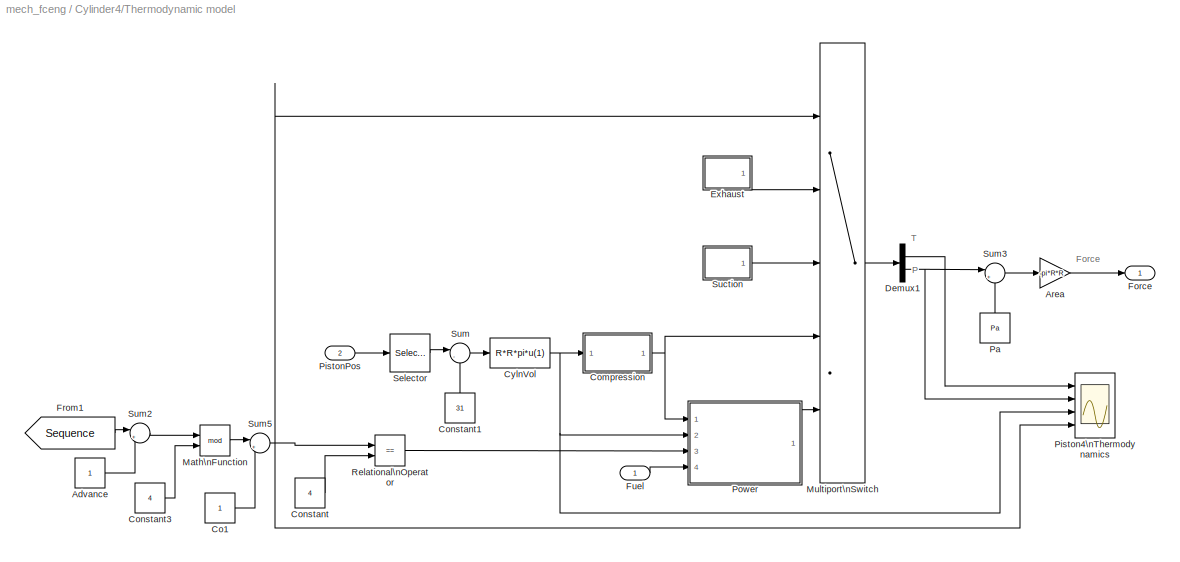
BLOCK [SubSystem] Cylinder4/Thermodynamic model
  MinAlgLoopOccurrences = off
  Ports = [2, 1]
  RTWSystemCode = Auto
  TreatAsAtomicUnit = off
BLOCK [Constant] Cylinder4/Thermodynamic model/Advance
BLOCK [Gain] Cylinder4/Thermodynamic model/Area
  Gain = -pi*R*R
BLOCK [Constant] Cylinder4/Thermodynamic model/Co1
BLOCK [SubSystem] Cylinder4/Thermodynamic model/Compression
  MinAlgLoopOccurrences = off
  Ports = [1, 1]
  RTWSystemCode = Auto
  TreatAsAtomicUnit = off
BLOCK [Mux] Cylinder4/Thermodynamic model/Compression/Mux
  DisplayOption = bar
  Inputs = 2
  Ports = [2, 1]
BLOCK [Fcn] Cylinder4/Thermodynamic model/Compression/P
  Expr = Pa*(Vo/u(1))^G
BLOCK [Fcn] Cylinder4/Thermodynamic model/Compression/T
  Expr = Ta*(Vo/u(1))^(G-1)
BLOCK [Outport] Cylinder4/Thermodynamic model/Compression/T_P
  BusOutputAsStruct = off
  IconDisplay = Port number
BLOCK [Inport] Cylinder4/Thermodynamic model/Compression/Volume
  IconDisplay = Port number
  LatchInput = off
  Port = 1
BLOCK [Constant] Cylinder4/Thermodynamic model/Constant
  Value = 4
BLOCK [Constant] Cylinder4/Thermodynamic model/Constant1
  Value = 31
BLOCK [Constant] Cylinder4/Thermodynamic model/Constant3
  Value = 4
BLOCK [Fcn] Cylinder4/Thermodynamic model/CylnVol
  Expr = R*R*pi*u(1)
BLOCK [Demux] Cylinder4/Thermodynamic model/Demux1
  Outputs = 2
  Ports = [1, 2]
BLOCK [SubSystem] Cylinder4/Thermodynamic model/Exhaust
  MinAlgLoopOccurrences = off
  Ports = [0, 1]
  RTWSystemCode = Auto
  TreatAsAtomicUnit = on
BLOCK [Mux] Cylinder4/Thermodynamic model/Exhaust/Mux
  DisplayOption = bar
  Inputs = 2
  Ports = [2, 1]
BLOCK [Constant] Cylinder4/Thermodynamic model/Exhaust/Pa
  Value = Pa
BLOCK [Outport] Cylinder4/Thermodynamic model/Exhaust/T_P
  BusOutputAsStruct = off
  IconDisplay = Port number
BLOCK [Constant] Cylinder4/Thermodynamic model/Exhaust/Ta
  Value = Ta
BLOCK [Outport] Cylinder4/Thermodynamic model/Force
  BusOutputAsStruct = off
  IconDisplay = Port number
BLOCK [From] Cylinder4/Thermodynamic model/From1
  CloseFcn = tagdialog Close
  DialogController = Simulink.DDGSource
  GotoTag = Sequence
BLOCK [Inport] Cylinder4/Thermodynamic model/Fuel
  IconDisplay = Port number
  LatchInput = off
  Port = 1
BLOCK [Math] Cylinder4/Thermodynamic model/Math\nFunction
  Operator = mod
  Ports = [2, 1]
BLOCK [MultiPortSwitch] Cylinder4/Thermodynamic model/Multiport\nSwitch
  Ports = [5, 1]
  SaturateOnIntegerOverflow = off
BLOCK [Constant] Cylinder4/Thermodynamic model/Pa
  Value = Pa
BLOCK [Scope] Cylinder4/Thermodynamic model/Piston4\nThermodynamics
  DataFormat = StructureWithTime
  NumInputPorts = 4
  Ports = [4]
  YMax = 4500~2.5e+006~1100~4
  YMin = 0~0~0~1
BLOCK [Inport] Cylinder4/Thermodynamic model/PistonPos
  IconDisplay = Port number
  LatchInput = off
  Port = 2
BLOCK [SubSystem] Cylinder4/Thermodynamic model/Power
  MinAlgLoopOccurrences = off
  Ports = [4, 1]
  RTWSystemCode = Auto
  TreatAsAtomicUnit = off
BLOCK [SubSystem] Cylinder4/Thermodynamic model/Power/Combustion
  MinAlgLoopOccurrences = off
  Ports = [4, 3, 0, 1]
  RTWSystemCode = Auto
  TreatAsAtomicUnit = on
BLOCK [Fcn] Cylinder4/Thermodynamic model/Power/Combustion/Fcn
  Expr = u(1)/(AirRo*Vtdc*Cv)+u(2)
BLOCK [Fcn] Cylinder4/Thermodynamic model/Power/Combustion/Fcn1
  Expr = u(3)*u(1)/u(2)
BLOCK [Inport] Cylinder4/Thermodynamic model/Power/Combustion/Fuel
  IconDisplay = Port number
  LatchInput = off
  Port = 3
BLOCK [Mux] Cylinder4/Thermodynamic model/Power/Combustion/Mux
  DisplayOption = bar
  Inputs = 2
  Ports = [2, 1]
BLOCK [Mux] Cylinder4/Thermodynamic model/Power/Combustion/Mux1
  DisplayOption = bar
  Inputs = 3
  Ports = [3, 1]
BLOCK [Outport] Cylinder4/Thermodynamic model/Power/Combustion/PressureAfterCombustion
  BusOutputAsStruct = off
  IconDisplay = Port number
  Port = 2
BLOCK [Inport] Cylinder4/Thermodynamic model/Power/Combustion/PressureBeforeCombustion
  IconDisplay = Port number
  LatchInput = off
  Port = 2
BLOCK [Outport] Cylinder4/Thermodynamic model/Power/Combustion/TemperatureAfterCombustion
  BusOutputAsStruct = off
  IconDisplay = Port number
BLOCK [Inport] Cylinder4/Thermodynamic model/Power/Combustion/TemperatureBeforeCombustion
  IconDisplay = Port number
  LatchInput = off
  Port = 1
BLOCK [TriggerPort] Cylinder4/Thermodynamic model/Power/Combustion/Trigger
  Ports = []
  ZeroCross = off
BLOCK [Outport] Cylinder4/Thermodynamic model/Power/Combustion/VolumeAfterCombustion
  BusOutputAsStruct = off
  IconDisplay = Port number
  Port = 3
BLOCK [Inport] Cylinder4/Thermodynamic model/Power/Combustion/VolumeBeforeCombustion
  IconDisplay = Port number
  LatchInput = off
  Port = 4
BLOCK [Gain] Cylinder4/Thermodynamic model/Power/Combustion/combustion
  Gain = Q
BLOCK [Demux] Cylinder4/Thermodynamic model/Power/Demux1
  Outputs = 2
  Ports = [1, 2]
BLOCK [Inport] Cylinder4/Thermodynamic model/Power/Fuel
  IconDisplay = Port number
  LatchInput = off
  Port = 4
BLOCK [InitialCondition] Cylinder4/Thermodynamic model/Power/IC
  Value = [Ta;Pa]
BLOCK [SubSystem] Cylinder4/Thermodynamic model/Power/IdealExpansion
  MinAlgLoopOccurrences = off
  Ports = [4, 2]
  RTWSystemCode = Auto
  TreatAsAtomicUnit = on
BLOCK [Outport] Cylinder4/Thermodynamic model/Power/IdealExpansion/FPressure
  BusOutputAsStruct = off
  IconDisplay = Port number
  Port = 2
BLOCK [Outport] Cylinder4/Thermodynamic model/Power/IdealExpansion/FTemperature
  BusOutputAsStruct = off
  IconDisplay = Port number
BLOCK [Inport] Cylinder4/Thermodynamic model/Power/IdealExpansion/IVolume
  IconDisplay = Port number
  LatchInput = off
  Port = 4
BLOCK [Mux] Cylinder4/Thermodynamic model/Power/IdealExpansion/Mux
  DisplayOption = bar
  Inputs = 3
  Ports = [3, 1]
BLOCK [Mux] Cylinder4/Thermodynamic model/Power/IdealExpansion/Mux1
  DisplayOption = bar
  Inputs = 3
  Ports = [3, 1]
BLOCK [Fcn] Cylinder4/Thermodynamic model/Power/IdealExpansion/P
  Expr = u(1)*(u(3)/u(2))^G
BLOCK [Inport] Cylinder4/Thermodynamic model/Power/IdealExpansion/PressureAfterCombustion
  IconDisplay = Port number
  LatchInput = off
  Port = 2
BLOCK [Fcn] Cylinder4/Thermodynamic model/Power/IdealExpansion/T
  Expr = u(1)*(u(3)/u(2))^(G-1)
BLOCK [Inport] Cylinder4/Thermodynamic model/Power/IdealExpansion/TemperatureAfterCombustion
  IconDisplay = Port number
  LatchInput = off
  Port = 1
BLOCK [Inport] Cylinder4/Thermodynamic model/Power/IdealExpansion/VolumeAfterCombustion
  IconDisplay = Port number
  LatchInput = off
  Port = 3
BLOCK [Mux] Cylinder4/Thermodynamic model/Power/Mux
  DisplayOption = bar
  Inputs = 2
  Ports = [2, 1]
BLOCK [Inport] Cylinder4/Thermodynamic model/Power/Spark
  IconDisplay = Port number
  LatchInput = off
  Port = 3
BLOCK [Outport] Cylinder4/Thermodynamic model/Power/T_P
  BusOutputAsStruct = off
  IconDisplay = Port number
BLOCK [Inport] Cylinder4/Thermodynamic model/Power/Temperature_Pressure
  IconDisplay = Port number
  LatchInput = off
  Port = 1
BLOCK [Inport] Cylinder4/Thermodynamic model/Power/Volume
  IconDisplay = Port number
  LatchInput = off
  Port = 2
BLOCK [RelationalOperator] Cylinder4/Thermodynamic model/Relational\nOperator
  Operator = ==
  ZeroCross = off
BLOCK [Selector] Cylinder4/Thermodynamic model/Selector
  Elements = 2
  InputPortWidth = 3
  Ports = [1, 1]
BLOCK [SubSystem] Cylinder4/Thermodynamic model/Suction
  MinAlgLoopOccurrences = off
  Ports = [0, 1]
  RTWSystemCode = Auto
  TreatAsAtomicUnit = on
BLOCK [Mux] Cylinder4/Thermodynamic model/Suction/Mux
  DisplayOption = bar
  Inputs = 2
  Ports = [2, 1]
BLOCK [Constant] Cylinder4/Thermodynamic model/Suction/Pa
  Value = Pa
BLOCK [Outport] Cylinder4/Thermodynamic model/Suction/T_P
  BusOutputAsStruct = off
  IconDisplay = Port number
BLOCK [Constant] Cylinder4/Thermodynamic model/Suction/Ta
  Value = Ta
BLOCK [Sum] Cylinder4/Thermodynamic model/Sum
  IconShape = round
  Inputs = |-+
  Ports = [2, 1]
BLOCK [Sum] Cylinder4/Thermodynamic model/Sum2
  IconShape = round
  Inputs = |++
  Ports = [2, 1]
BLOCK [Sum] Cylinder4/Thermodynamic model/Sum3
  IconShape = round
  Inputs = |+-
  Ports = [2, 1]
BLOCK [Sum] Cylinder4/Thermodynamic model/Sum5
  IconShape = round
  Inputs = |++
  Ports = [2, 1]
BLOCK [Gain] Cylinder4/gmf2N
  Gain = 9.81/1000
BLOCK [Gain] Cylinder4/m2cm
  Gain = 100
BLOCK [Demux] Demux
  Ports = [1, 4]
BLOCK [SubSystem] Engine Block
  MaskDisplay = image(crank);
  MaskIconFrame = on
  MaskIconOpaque = on
  MaskIconRotate = none
  MaskIconUnits = autoscale
  MinAlgLoopOccurrences = off
  Ports = [0, 0, 0, 0, 0, 1, 4]
  RTWSystemCode = Auto
  TreatAsAtomicUnit = off
BLOCK [Reference] Engine Block/Angle sensor  REF=mblibv1/Sensors & \nActuators/Joint Sensor
  Acceleration = off
  AccelerationUnits = m/s^2
  ActiveIO = on
  Angle = on
  AngleUnits = rad
  ArcAcceleration = off
  ArcAccelerationUnits = deg/s^2
  ArcVelocity = on
  ArcVelocityUnits = rad/s
  ClassName = JointSensor
  CoordPosition = on
  CoordPositionUnits = m
  DialogClass = MechanicalSensorBlock
  Force = off
  ForceUnits = N
  Muxed = off
  Opaque = on
  OutputVector = [ 1 1 ]
  PhysicalDomain = Mechanical
  PortType = blob
  Ports = [0, 2, 0, 0, 0, 1]
  Pose = on
  Primitive = R1
  Quaternion = on
  QuaternionDDT = off
  QuaternionDT = off
  QuaternionUnits = off
  ReactionForce = off
  ReactionForceUnits = N
  ReactionMoment = off
  ReactionMomentUnits = N-m
  ReactionReferenceFrame = Absolute (World)
  ReactionSensedSide = Base
  ReferenceFrame = Absolute (INERTIAL)
  ShowPortLabels = on
  SourceBlock = mblibv1/Sensors & \nActuators/Joint Sensor
  SourceType = msb
  Torque = off
  TorqueUnits = N-m
  Velocity = off
  VelocityUnits = m/s
  Width = 2
BLOCK [Reference] Engine Block/Crank  REF=mblibv1/Bodies/Body
  CG = Left$CG$[4.45 0 0]$WORLD$WORLD$cm$[0 0 0]$Euler X-Y-Z$deg$WORLD$false
  ClassName = Body
  Density = 1
  DensityUnits = kg/m^3
  DensityUse = false
  DialogClass = MechanicalBodyBlock
  Inertia = [1159762.55 0 0;0 9246514.71 -187767.86;0 -187767.86 9246514.71]*1E-5
  InertiaUnits = kg*m^2
  LConnTagsString = CS1
  LeftPortType = workingframe
  Mass = 33846.54
  MassUnits = g
  PhysicalDomain = mechanical
  Ports = [0, 0, 0, 0, 0, 1, 4]
  RConnTagsString = CS2|CS3|CS4|CS5
  RightPortType = workingframe
  Shape = Cylinder
  ShapeDims = [1 1]
  ShapeUnits = m
  ShapeUse = false
  SourceBlock = mblibv1/Bodies/Body
  SourceType = msb
  SubClassName = Unknown
  WorkingFrames = Left$CS1$[0 0 0]$WORLD$WORLD$cm$[0 0 0]$Euler X-Y-Z$deg$WORLD$true#Right$CS2$[-18 4.24 -4.24]$WORLD$WORLD$cm$[0 0 0]$Euler X-Y-Z$deg$WORLD$true#Right$CS3$[-6 -4.24 4.24]$WORLD$WORLD$cm$[0 0 0]$Euler X-Y-Z$deg$WORLD$true#Right$CS4$[6 -4.24 4.24]$WORLD$WORLD$cm$[0 0 0]$Euler X-Y-Z$deg$WORLD$true#Right$CS5$[18 4.24 -4.24]$WORLD$WORLD$cm$[0 0 0]$Euler X-Y-Z$deg$WORLD$true
BLOCK [Reference] Engine Block/Engine Block  REF=mblibv1/Bodies/Ground
  ClassName = Ground
  CoordPosition = [0 0 0]
  CoordPositionUnits = cm
  DialogClass = GroundBlock
  LeftPortType = env
  MachineId = [0 0]
  Opaque = on
  PhysicalDomain = Mechanical
  Ports = [0, 0, 0, 0, 0, 1, 1]
  RightPortType = workingframe
  ShowEnvPort = on
  ShowPortLabels = on
  SourceBlock = mblibv1/Bodies/Ground
  SourceType = msb
  StateVectorMgrId = -1
  UserData = DataTag4
  UserDataPersistent = on
BLOCK [SubSystem] Engine Block/Engine Timer
  MinAlgLoopOccurrences = off
  Ports = [1]
  RTWSystemCode = Auto
  TreatAsAtomicUnit = off
BLOCK [Inport] Engine Block/Engine Timer/Angle
  IconDisplay = Port number
  LatchInput = off
  Port = 1
BLOCK [Constant] Engine Block/Engine Timer/Constant
  Value = pi/4
BLOCK [Goto] Engine Block/Engine Timer/Goto1
  DialogController = Simulink.DDGSource
  GotoTag = Sequence
  TagVisibility = global
BLOCK [HitCross] Engine Block/Engine Timer/Hit \nCrossing2
  HitCrossingDirection = either
  Ports = [1, 1]
  ZeroCross = off
BLOCK [SubSystem] Engine Block/Engine Timer/Ignition Control
  MaskDescription = Stateflow diagram
  MaskDisplay = plot(sf('Private','sfblk','xIcon'),sf('Private','sfblk','yIcon'));text(0.5,0,sf('Private', 'sfblk', 'tIcon'),'HorizontalAl','Center','VerticalAl','Bottom');
  MaskIconFrame = off
  MaskIconOpaque = off
  MaskIconRotate = none
  MaskIconUnits = autoscale
  MaskSelfModifiable = on
  MaskType = Stateflow
  MinAlgLoopOccurrences = off
  Ports = [1, 1, 0, 1]
  RTWSystemCode = Auto
  TreatAsAtomicUnit = on
BLOCK [Demux] Engine Block/Engine Timer/Ignition Control/ Demux 
  Outputs = 1
  Ports = [1, 1]
BLOCK [S-Function] Engine Block/Engine Timer/Ignition Control/ SFunction 
  FunctionName = sf_sfun
  PortCounts = [2 2]
  Ports = [2, 2]
  Tag = Stateflow S-Function mech_fceng 2
BLOCK [Terminator] Engine Block/Engine Timer/Ignition Control/ Terminator 
BLOCK [Inport] Engine Block/Engine Timer/Ignition Control/CrankAngle
  IconDisplay = Port number
  LatchInput = off
  Port = 1
BLOCK [TriggerPort] Engine Block/Engine Timer/Ignition Control/CrankTrigger
  Ports = [0, 1]
  ShowOutputPort = on
  ZeroCross = off
BLOCK [Outport] Engine Block/Engine Timer/Ignition Control/Sequence
  BusOutputAsStruct = off
  IconDisplay = Port number
BLOCK [Sum] Engine Block/Engine Timer/Sum
  IconShape = round
  Inputs = ++|
  Ports = [2, 1]
BLOCK [Trigonometry] Engine Block/Engine Timer/Trigonometric\nFunction
  Operator = cos
  Ports = [1, 1]
BLOCK [SubSystem] Engine Block/Friction
  MinAlgLoopOccurrences = off
  Ports = [2, 1]
  RTWSystemCode = Auto
  TreatAsAtomicUnit = off
BLOCK [Reference] Engine Block/Friction actuator  REF=mblibv1/Sensors & \nActuators/Joint Actuator
  AccelerationUnits = m/s^2
  ActiveIO = on
  ActuationStyle = Force
  AngleUnits = deg
  ArcAccelerationUnits = deg/s^2
  ArcVelocityUnits = deg/s
  ClassName = JointActuator
  CoordPositionUnits = m
  DialogClass = MechanicalActuatorBlock
  ForceUnits = N
  Opaque = on
  PhysicalDomain = Mechanical
  PortType = blob
  Ports = [1, 0, 0, 0, 0, 0, 1]
  Primitive = R1
  ReferenceFrame = Absolute (INERTIAL)
  ShowPortLabels = on
  SourceBlock = mblibv1/Sensors & \nActuators/Joint Actuator
  SourceType = msb
  TorqueUnits = N-m
  VelocityUnits = m/s
  Width = 1
BLOCK [Inport] Engine Block/Friction/Angle
  IconDisplay = Port number
  LatchInput = off
  Port = 1
BLOCK [Fcn] Engine Block/Friction/Fcn
  Expr = u < 0
BLOCK [Gain] Engine Block/Friction/Gain
  Gain = 1000
BLOCK [Gain] Engine Block/Friction/Gain1
  Gain = -200
BLOCK [Goto] Engine Block/Friction/Goto6
  DialogController = Simulink.DDGSource
  GotoTag = CrankSR
  TagVisibility = global
BLOCK [Inport] Engine Block/Friction/Rate
  IconDisplay = Port number
  LatchInput = off
  Port = 2
BLOCK [Reference] Engine Block/Friction/S-R\nFlip-Flop  REF=simulink_extras/Flip Flops/S-R\nFlip-Flop
  Ports = [2, 2]
  ShowPortLabels = on
  SourceBlock = simulink_extras/Flip Flops/S-R\nFlip-Flop
  SourceType = SRFlipFlop
  initial_condition = 0
BLOCK [Sum] Engine Block/Friction/Sum1
  IconShape = round
  Inputs = ++|
  Ports = [2, 1]
BLOCK [Outport] Engine Block/Friction/Torque
  BusOutputAsStruct = off
  IconDisplay = Port number
BLOCK [Reference] Engine Block/Machine\nEnvironment  REF=mblibv1/Bodies/Machine\nEnvironment
  AnalysisType = Forward dynamics
  AngularAssemblyTolerance = 1e-3
  AngularAssemblyToleranceUnits = rad
  ClassName = Environment
  ConstraintAbsTolerance = 1e-4
  ConstraintRelTolerance = 1e-4
  ConstraintSolverType = Stabilizing
  DialogController = MECH.DialogSource
  DialogTemplateClass = MECH.MachineEnvironment
  Dimensionality = 3D Only
  Gravity = [0 -9.81 0]
  GravityAsSignal = off
  GravityUnits = m/s^2
  LinearAssemblyTolerance = 1e-3
  LinearAssemblyToleranceUnits = m
  Opaque = on
  PerturbationSize = 1e-5
  PhysicalDomain = Mechanical
  PortType = env
  Ports = [0, 0, 0, 0, 0, 0, 1]
  ShowPortLabels = on
  SourceBlock = mblibv1/Bodies/Machine\nEnvironment
  SourceType = Mechanical
  StatePerturbationType = Fixed
  SyncWhenCopied = off
  Tag = Factory ground
  UseRobustSingularityHandling = off
  VisualizeMachine = on
BLOCK [Reference] Engine Block/Revolute  REF=mblibv1/Joints/Revolute
  ClassName = Joint
  CutJoint = off
  DialogClass = JointBlock
  LConnTagsString = __newl0|SA1|SA2
  LeftPortType = blob
  MarkAsCut = off
  NumSAPorts = 3
  PhysicalDomain = mechanical
  Ports = [0, 0, 0, 0, 0, 3, 2]
  PrimitiveProps = R1$WORLD$[1 0 0]$revolute
  Primitives = revolute
  RConnTagsString = __newr0|SA1
  RightPortType = blob
  SourceBlock = mblibv1/Joints/Revolute
  SourceType = msb
  SubClassName = Unknown
BLOCK [PMIOPort] Engine Block/Rod1
  Port = 1
  Side = Right
BLOCK [PMIOPort] Engine Block/Rod2
  Port = 2
  Side = Right
BLOCK [PMIOPort] Engine Block/Rod3
  Port = 3
  Side = Right
BLOCK [PMIOPort] Engine Block/Rod4
  Port = 4
  Side = Right
BLOCK [PMIOPort] Engine Block/Tacometer
  Port = 5
  Side = Left
BLOCK [SubSystem] Stall
  MinAlgLoopOccurrences = off
  Ports = [1, 1]
  RTWSystemCode = Auto
  TreatAsAtomicUnit = off
BLOCK [From] Stall/From
  CloseFcn = tagdialog Close
  DialogController = Simulink.DDGSource
  GotoTag = Cylinder1
BLOCK [From] Stall/From1
  CloseFcn = tagdialog Close
  DialogController = Simulink.DDGSource
  GotoTag = Cylinder2
BLOCK [Outport] Stall/Fuel
  BusOutputAsStruct = off
  IconDisplay = Port number
BLOCK [Inport] Stall/Fuel 
  IconDisplay = Port number
  LatchInput = off
  Port = 1
BLOCK [Gain] Stall/Gain1
  Gain = 0.05
BLOCK [Gain] Stall/Gain2
  Gain = -1
BLOCK [Gain] Stall/Gain3
  Gain = -1
BLOCK [Mux] Stall/Mux
  DisplayOption = bar
  Ports = [4, 1]
BLOCK [Switch] Stall/Switch
  SaturateOnIntegerOverflow = off
  Threshold = 0.5
  ZeroCross = off
BLOCK [Switch] Stall/Switch1
  SaturateOnIntegerOverflow = off
  Threshold = 0.5
  ZeroCross = off
BLOCK [SubSystem] Tachometer
  MinAlgLoopOccurrences = off
  Ports = [0, 0, 0, 0, 0, 1]
  RTWSystemCode = Auto
  TreatAsAtomicUnit = off
BLOCK [Constant] Tachometer/Constant
  Value = 0
BLOCK [Scope] Tachometer/Engine RPM
  DataFormat = StructureWithTime
  NumInputPorts = 1
  Ports = [1]
  SaveName = ScopeData2
  Tag = OpenMeAtStartUp
  YMax = 900
  YMin = 0
BLOCK [Gain] Tachometer/Gain1
  Gain = 60/(2*pi)
BLOCK [Reference] Tachometer/Joint Sensor  REF=mblibv1/Sensors & \nActuators/Joint Sensor
  Acceleration = off
  AccelerationUnits = m/s^2
  ActiveIO = on
  Angle = off
  AngleUnits = deg
  ArcAcceleration = off
  ArcAccelerationUnits = deg/s^2
  ArcVelocity = on
  ArcVelocityUnits = rad/s
  ClassName = JointSensor
  CoordPosition = on
  CoordPositionUnits = m
  DialogClass = MechanicalSensorBlock
  Force = off
  ForceUnits = N
  Muxed = on
  Opaque = on
  OutputVector = [ 1 ]
  PhysicalDomain = Mechanical
  PortType = blob
  Ports = [0, 1, 0, 0, 0, 1]
  Pose = off
  Primitive = R1
  Quaternion = on
  QuaternionDDT = off
  QuaternionDT = off
  QuaternionUnits = off
  ReactionForce = off
  ReactionForceUnits = N
  ReactionMoment = off
  ReactionMomentUnits = N-m
  ReactionReferenceFrame = Absolute (World)
  ReactionSensedSide = Base
  ReferenceFrame = Absolute (INERTIAL)
  ShowPortLabels = on
  SourceBlock = mblibv1/Sensors & \nActuators/Joint Sensor
  SourceType = msb
  Torque = off
  TorqueUnits = N-m
  Velocity = off
  VelocityUnits = m/s
  Width = 1
BLOCK [PMIOPort] Tachometer/Rate
  Port = 1
  Side = Left
  Tag = PMCPort
BLOCK [RelationalOperator] Tachometer/Relational\nOperator
  Operator = <
  ZeroCross = off
BLOCK [Stop] Tachometer/Stop Simulation
BLOCK [TransferFcn] Tachometer/Transfer Fcn
  Denominator = [1 15]
  Numerator = [15]
BLOCK [SubSystem] Virtual Reality Toolbox
  MaskDisplay = disp(sprintf('Double-click to open\\nVirtual Reality Toolbox viewer'))
  MaskIconFrame = on
  MaskIconOpaque = on
  MaskIconRotate = none
  MaskIconUnits = autoscale
  MaskType = Double-click open
  MinAlgLoopOccurrences = off
  OpenFcn = mech_OpenVrWorld(gcs,'mech_fceng_vrlib')
  Ports = []
  RTWSystemCode = Auto
  TreatAsAtomicUnit = off
ANNOTATION (root): Four Cylinder IC Engine
ANNOTATION (root): This model simulates a four-cylinder internal combustion engine. Major functions are organized into subsystems.\nSimMechanics blocks simulate the motion of the crank, connecting rods, and pistons. Stateflow blocks\ncontrol the ignition timing of the cylinders. Simulink blocks model the idealized gas dynamics. The Control\nsubsystem provides user-adjustable fuel rate control.
ANNOTATION Cylinder1/Thermodynamic model: Force
ANNOTATION Cylinder1/Thermodynamic model: P
ANNOTATION Cylinder1/Thermodynamic model: T
ANNOTATION Cylinder1/Thermodynamic model/Compression: Compression
ANNOTATION Cylinder1/Thermodynamic model/Compression: P
ANNOTATION Cylinder1/Thermodynamic model/Compression: T
ANNOTATION Cylinder1/Thermodynamic model/Exhaust: Exhaust
ANNOTATION Cylinder1/Thermodynamic model/Power/Combustion: Joules
ANNOTATION Cylinder1/Thermodynamic model/Suction: Suction
ANNOTATION Cylinder2/Thermodynamic model: Force
ANNOTATION Cylinder2/Thermodynamic model: P
ANNOTATION Cylinder2/Thermodynamic model: T
ANNOTATION Cylinder2/Thermodynamic model/Compression: Compression
ANNOTATION Cylinder2/Thermodynamic model/Compression: P
ANNOTATION Cylinder2/Thermodynamic model/Compression: T
ANNOTATION Cylinder2/Thermodynamic model/Exhaust: Exhaust
ANNOTATION Cylinder2/Thermodynamic model/Power/Combustion: Joules
ANNOTATION Cylinder2/Thermodynamic model/Suction: Suction
ANNOTATION Cylinder3/Thermodynamic model: Force
ANNOTATION Cylinder3/Thermodynamic model: P
ANNOTATION Cylinder3/Thermodynamic model: T
ANNOTATION Cylinder3/Thermodynamic model/Compression: Compression
ANNOTATION Cylinder3/Thermodynamic model/Compression: P
ANNOTATION Cylinder3/Thermodynamic model/Compression: T
ANNOTATION Cylinder3/Thermodynamic model/Exhaust: Exhaust
ANNOTATION Cylinder3/Thermodynamic model/Power/Combustion: Joules
ANNOTATION Cylinder3/Thermodynamic model/Suction: Suction
ANNOTATION Cylinder4/Thermodynamic model: Force
ANNOTATION Cylinder4/Thermodynamic model: P
ANNOTATION Cylinder4/Thermodynamic model: T
ANNOTATION Cylinder4/Thermodynamic model/Compression: Compression
ANNOTATION Cylinder4/Thermodynamic model/Compression: P
ANNOTATION Cylinder4/Thermodynamic model/Compression: T
ANNOTATION Cylinder4/Thermodynamic model/Exhaust: Exhaust
ANNOTATION Cylinder4/Thermodynamic model/Power/Combustion: Joules
ANNOTATION Cylinder4/Thermodynamic model/Suction: Suction
ANNOTATION Tachometer: RPM
LINE Control/Constant:1 -> Control/Fuel Control:1
LINE Control/Cylinder1:1 -> Control/Goto:1
LINE Control/Cylinder4:1 -> Control/Goto1:1
LINE Control/Fuel Control:1 -> Control/Fuel:1
NET Control/OFF:1 -> Control/Cylinder1:1, Control/Cylinder4:1
NET Control/ON:1 -> Control/Cylinder1:2, Control/Cylinder4:2
LINE Control:1 -> Stall:1
LINE Cylinder1/Body Sensor1:1 -> Cylinder1/Goto7:1
LINE Cylinder1/Body Sensor1:2 -> Cylinder1/Goto1:1
LINE Cylinder1/Body Sensor:1 -> Cylinder1/Goto8:1
LINE Cylinder1/Fuel:1 -> Cylinder1/Thermodynamic model:1
LINE Cylinder1/Piston Head\nPosition:1 -> Cylinder1/m2cm:1
LINE Cylinder1/Thermodynamic model/Area:1 -> Cylinder1/Thermodynamic model/Force:1
LINE Cylinder1/Thermodynamic model/Compression/Mux:1 -> Cylinder1/Thermodynamic model/Compression/T_P:1
LINE Cylinder1/Thermodynamic model/Compression/P:1 -> Cylinder1/Thermodynamic model/Compression/Mux:2
LINE Cylinder1/Thermodynamic model/Compression/T:1 -> Cylinder1/Thermodynamic model/Compression/Mux:1
NET Cylinder1/Thermodynamic model/Compression/Volume:1 -> Cylinder1/Thermodynamic model/Compression/P:1, Cylinder1/Thermodynamic model/Compression/T:1
NET Cylinder1/Thermodynamic model/Compression:1 -> Cylinder1/Thermodynamic model/Multiport\nSwitch:4, Cylinder1/Thermodynamic model/Power:1
LINE Cylinder1/Thermodynamic model/Constant1:1 -> Cylinder1/Thermodynamic model/Sum:2
LINE Cylinder1/Thermodynamic model/Constant:1 -> Cylinder1/Thermodynamic model/Relational\nOperator:2
NET Cylinder1/Thermodynamic model/CylnVol:1 -> Cylinder1/Thermodynamic model/Compression:1, Cylinder1/Thermodynamic model/Piston1\nThermodynamics:3, Cylinder1/Thermodynamic model/Power:2
LINE Cylinder1/Thermodynamic model/Demux1:1 -> Cylinder1/Thermodynamic model/Piston1\nThermodynamics:1
NET Cylinder1/Thermodynamic model/Demux1:2 -> Cylinder1/Thermodynamic model/Piston1\nThermodynamics:2, Cylinder1/Thermodynamic model/Sum3:1
LINE Cylinder1/Thermodynamic model/Exhaust/Mux:1 -> Cylinder1/Thermodynamic model/Exhaust/T_P:1
LINE Cylinder1/Thermodynamic model/Exhaust/Pa:1 -> Cylinder1/Thermodynamic model/Exhaust/Mux:2
LINE Cylinder1/Thermodynamic model/Exhaust/Ta:1 -> Cylinder1/Thermodynamic model/Exhaust/Mux:1
LINE Cylinder1/Thermodynamic model/Exhaust:1 -> Cylinder1/Thermodynamic model/Multiport\nSwitch:2
NET Cylinder1/Thermodynamic model/From:1 -> Cylinder1/Thermodynamic model/Multiport\nSwitch:1, Cylinder1/Thermodynamic model/Relational\nOperator:1
LINE Cylinder1/Thermodynamic model/Fuel:1 -> Cylinder1/Thermodynamic model/Power:4
LINE Cylinder1/Thermodynamic model/Multiport\nSwitch:1 -> Cylinder1/Thermodynamic model/Demux1:1
LINE Cylinder1/Thermodynamic model/Pa:1 -> Cylinder1/Thermodynamic model/Sum3:2
LINE Cylinder1/Thermodynamic model/PistonPos:1 -> Cylinder1/Thermodynamic model/Selector:1
LINE Cylinder1/Thermodynamic model/Power/Combustion/Fcn1:1 -> Cylinder1/Thermodynamic model/Power/Combustion/PressureAfterCombustion:1
NET Cylinder1/Thermodynamic model/Power/Combustion/Fcn:1 -> Cylinder1/Thermodynamic model/Power/Combustion/Mux1:1, Cylinder1/Thermodynamic model/Power/Combustion/TemperatureAfterCombustion:1
LINE Cylinder1/Thermodynamic model/Power/Combustion/Fuel:1 -> Cylinder1/Thermodynamic model/Power/Combustion/combustion:1
LINE Cylinder1/Thermodynamic model/Power/Combustion/Mux1:1 -> Cylinder1/Thermodynamic model/Power/Combustion/Fcn1:1
LINE Cylinder1/Thermodynamic model/Power/Combustion/Mux:1 -> Cylinder1/Thermodynamic model/Power/Combustion/Fcn:1
LINE Cylinder1/Thermodynamic model/Power/Combustion/PressureBeforeCombustion:1 -> Cylinder1/Thermodynamic model/Power/Combustion/Mux1:3
NET Cylinder1/Thermodynamic model/Power/Combustion/TemperatureBeforeCombustion:1 -> Cylinder1/Thermodynamic model/Power/Combustion/Mux1:2, Cylinder1/Thermodynamic model/Power/Combustion/Mux:2
LINE Cylinder1/Thermodynamic model/Power/Combustion/VolumeBeforeCombustion:1 -> Cylinder1/Thermodynamic model/Power/Combustion/VolumeAfterCombustion:1
LINE Cylinder1/Thermodynamic model/Power/Combustion/combustion:1 -> Cylinder1/Thermodynamic model/Power/Combustion/Mux:1
LINE Cylinder1/Thermodynamic model/Power/Combustion:1 -> Cylinder1/Thermodynamic model/Power/IdealExpansion:1
LINE Cylinder1/Thermodynamic model/Power/Combustion:2 -> Cylinder1/Thermodynamic model/Power/IdealExpansion:2
LINE Cylinder1/Thermodynamic model/Power/Combustion:3 -> Cylinder1/Thermodynamic model/Power/IdealExpansion:3
LINE Cylinder1/Thermodynamic model/Power/Demux1:1 -> Cylinder1/Thermodynamic model/Power/Combustion:1
LINE Cylinder1/Thermodynamic model/Power/Demux1:2 -> Cylinder1/Thermodynamic model/Power/Combustion:2
LINE Cylinder1/Thermodynamic model/Power/Fuel:1 -> Cylinder1/Thermodynamic model/Power/Combustion:3
LINE Cylinder1/Thermodynamic model/Power/IC:1 -> Cylinder1/Thermodynamic model/Power/Demux1:1
NET Cylinder1/Thermodynamic model/Power/IdealExpansion/IVolume:1 -> Cylinder1/Thermodynamic model/Power/IdealExpansion/Mux1:2, Cylinder1/Thermodynamic model/Power/IdealExpansion/Mux:2
LINE Cylinder1/Thermodynamic model/Power/IdealExpansion/Mux1:1 -> Cylinder1/Thermodynamic model/Power/IdealExpansion/P:1
LINE Cylinder1/Thermodynamic model/Power/IdealExpansion/Mux:1 -> Cylinder1/Thermodynamic model/Power/IdealExpansion/T:1
LINE Cylinder1/Thermodynamic model/Power/IdealExpansion/P:1 -> Cylinder1/Thermodynamic model/Power/IdealExpansion/FPressure:1
LINE Cylinder1/Thermodynamic model/Power/IdealExpansion/PressureAfterCombustion:1 -> Cylinder1/Thermodynamic model/Power/IdealExpansion/Mux1:1
LINE Cylinder1/Thermodynamic model/Power/IdealExpansion/T:1 -> Cylinder1/Thermodynamic model/Power/IdealExpansion/FTemperature:1
LINE Cylinder1/Thermodynamic model/Power/IdealExpansion/TemperatureAfterCombustion:1 -> Cylinder1/Thermodynamic model/Power/IdealExpansion/Mux:1
NET Cylinder1/Thermodynamic model/Power/IdealExpansion/VolumeAfterCombustion:1 -> Cylinder1/Thermodynamic model/Power/IdealExpansion/Mux1:3, Cylinder1/Thermodynamic model/Power/IdealExpansion/Mux:3
LINE Cylinder1/Thermodynamic model/Power/IdealExpansion:1 -> Cylinder1/Thermodynamic model/Power/Mux:1
LINE Cylinder1/Thermodynamic model/Power/IdealExpansion:2 -> Cylinder1/Thermodynamic model/Power/Mux:2
LINE Cylinder1/Thermodynamic model/Power/Mux:1 -> Cylinder1/Thermodynamic model/Power/T_P:1
LINE Cylinder1/Thermodynamic model/Power/Spark:1 -> Cylinder1/Thermodynamic model/Power/Combustion:trigger
LINE Cylinder1/Thermodynamic model/Power/Temperature_Pressure:1 -> Cylinder1/Thermodynamic model/Power/IC:1
NET Cylinder1/Thermodynamic model/Power/Volume:1 -> Cylinder1/Thermodynamic model/Power/Combustion:4, Cylinder1/Thermodynamic model/Power/IdealExpansion:4
LINE Cylinder1/Thermodynamic model/Power:1 -> Cylinder1/Thermodynamic model/Multiport\nSwitch:5
LINE Cylinder1/Thermodynamic model/Relational\nOperator:1 -> Cylinder1/Thermodynamic model/Power:3
LINE Cylinder1/Thermodynamic model/Selector:1 -> Cylinder1/Thermodynamic model/Sum:1
LINE Cylinder1/Thermodynamic model/Suction/Mux:1 -> Cylinder1/Thermodynamic model/Suction/T_P:1
LINE Cylinder1/Thermodynamic model/Suction/Pa:1 -> Cylinder1/Thermodynamic model/Suction/Mux:2
LINE Cylinder1/Thermodynamic model/Suction/Ta:1 -> Cylinder1/Thermodynamic model/Suction/Mux:1
LINE Cylinder1/Thermodynamic model/Suction:1 -> Cylinder1/Thermodynamic model/Multiport\nSwitch:3
LINE Cylinder1/Thermodynamic model/Sum3:1 -> Cylinder1/Thermodynamic model/Area:1
LINE Cylinder1/Thermodynamic model/Sum:1 -> Cylinder1/Thermodynamic model/CylnVol:1
LINE Cylinder1/Thermodynamic model:1 -> Cylinder1/gmf2N:1
LINE Cylinder1/gmf2N:1 -> Cylinder1/Joint Actuator:1
LINE Cylinder1/m2cm:1 -> Cylinder1/Thermodynamic model:2
LINE Cylinder2/Body Sensor1:1 -> Cylinder2/Goto7:1
LINE Cylinder2/Body Sensor1:2 -> Cylinder2/Goto1:1
LINE Cylinder2/Body Sensor:1 -> Cylinder2/Goto8:1
LINE Cylinder2/Fuel:1 -> Cylinder2/Thermodynamic model:1
LINE Cylinder2/Piston Head\nPosition:1 -> Cylinder2/m2cm:1
LINE Cylinder2/Thermodynamic model/Advance:1 -> Cylinder2/Thermodynamic model/Sum2:2
LINE Cylinder2/Thermodynamic model/Area:1 -> Cylinder2/Thermodynamic model/Force:1
LINE Cylinder2/Thermodynamic model/Compression/Mux:1 -> Cylinder2/Thermodynamic model/Compression/T_P:1
LINE Cylinder2/Thermodynamic model/Compression/P:1 -> Cylinder2/Thermodynamic model/Compression/Mux:2
LINE Cylinder2/Thermodynamic model/Compression/T:1 -> Cylinder2/Thermodynamic model/Compression/Mux:1
NET Cylinder2/Thermodynamic model/Compression/Volume:1 -> Cylinder2/Thermodynamic model/Compression/P:1, Cylinder2/Thermodynamic model/Compression/T:1
NET Cylinder2/Thermodynamic model/Compression:1 -> Cylinder2/Thermodynamic model/Multiport\nSwitch:4, Cylinder2/Thermodynamic model/Power:1
LINE Cylinder2/Thermodynamic model/Constant1:1 -> Cylinder2/Thermodynamic model/Sum:2
LINE Cylinder2/Thermodynamic model/Constant3:1 -> Cylinder2/Thermodynamic model/Math\nFunction:2
LINE Cylinder2/Thermodynamic model/Constant:1 -> Cylinder2/Thermodynamic model/Relational\nOperator:2
NET Cylinder2/Thermodynamic model/CylnVol:1 -> Cylinder2/Thermodynamic model/Compression:1, Cylinder2/Thermodynamic model/Piston2\nThermodynamics:3, Cylinder2/Thermodynamic model/Power:2
LINE Cylinder2/Thermodynamic model/Demux1:1 -> Cylinder2/Thermodynamic model/Piston2\nThermodynamics:1
NET Cylinder2/Thermodynamic model/Demux1:2 -> Cylinder2/Thermodynamic model/Piston2\nThermodynamics:2, Cylinder2/Thermodynamic model/Sum3:1
LINE Cylinder2/Thermodynamic model/Exhaust/Mux:1 -> Cylinder2/Thermodynamic model/Exhaust/T_P:1
LINE Cylinder2/Thermodynamic model/Exhaust/Pa:1 -> Cylinder2/Thermodynamic model/Exhaust/Mux:2
LINE Cylinder2/Thermodynamic model/Exhaust/Ta:1 -> Cylinder2/Thermodynamic model/Exhaust/Mux:1
LINE Cylinder2/Thermodynamic model/Exhaust:1 -> Cylinder2/Thermodynamic model/Multiport\nSwitch:2
LINE Cylinder2/Thermodynamic model/From1:1 -> Cylinder2/Thermodynamic model/Math\nFunction:1
LINE Cylinder2/Thermodynamic model/Fuel:1 -> Cylinder2/Thermodynamic model/Power:4
LINE Cylinder2/Thermodynamic model/Math\nFunction:1 -> Cylinder2/Thermodynamic model/Sum2:1
LINE Cylinder2/Thermodynamic model/Multiport\nSwitch:1 -> Cylinder2/Thermodynamic model/Demux1:1
LINE Cylinder2/Thermodynamic model/Pa:1 -> Cylinder2/Thermodynamic model/Sum3:2
LINE Cylinder2/Thermodynamic model/PistonPos:1 -> Cylinder2/Thermodynamic model/Selector:1
LINE Cylinder2/Thermodynamic model/Power/Combustion/Fcn1:1 -> Cylinder2/Thermodynamic model/Power/Combustion/PressureAfterCombustion:1
NET Cylinder2/Thermodynamic model/Power/Combustion/Fcn:1 -> Cylinder2/Thermodynamic model/Power/Combustion/Mux1:1, Cylinder2/Thermodynamic model/Power/Combustion/TemperatureAfterCombustion:1
LINE Cylinder2/Thermodynamic model/Power/Combustion/Fuel:1 -> Cylinder2/Thermodynamic model/Power/Combustion/combustion:1
LINE Cylinder2/Thermodynamic model/Power/Combustion/Mux1:1 -> Cylinder2/Thermodynamic model/Power/Combustion/Fcn1:1
LINE Cylinder2/Thermodynamic model/Power/Combustion/Mux:1 -> Cylinder2/Thermodynamic model/Power/Combustion/Fcn:1
LINE Cylinder2/Thermodynamic model/Power/Combustion/PressureBeforeCombustion:1 -> Cylinder2/Thermodynamic model/Power/Combustion/Mux1:3
NET Cylinder2/Thermodynamic model/Power/Combustion/TemperatureBeforeCombustion:1 -> Cylinder2/Thermodynamic model/Power/Combustion/Mux1:2, Cylinder2/Thermodynamic model/Power/Combustion/Mux:2
LINE Cylinder2/Thermodynamic model/Power/Combustion/VolumeBeforeCombustion:1 -> Cylinder2/Thermodynamic model/Power/Combustion/VolumeAfterCombustion:1
LINE Cylinder2/Thermodynamic model/Power/Combustion/combustion:1 -> Cylinder2/Thermodynamic model/Power/Combustion/Mux:1
LINE Cylinder2/Thermodynamic model/Power/Combustion:1 -> Cylinder2/Thermodynamic model/Power/IdealExpansion:1
LINE Cylinder2/Thermodynamic model/Power/Combustion:2 -> Cylinder2/Thermodynamic model/Power/IdealExpansion:2
LINE Cylinder2/Thermodynamic model/Power/Combustion:3 -> Cylinder2/Thermodynamic model/Power/IdealExpansion:3
LINE Cylinder2/Thermodynamic model/Power/Demux1:1 -> Cylinder2/Thermodynamic model/Power/Combustion:1
LINE Cylinder2/Thermodynamic model/Power/Demux1:2 -> Cylinder2/Thermodynamic model/Power/Combustion:2
LINE Cylinder2/Thermodynamic model/Power/Fuel:1 -> Cylinder2/Thermodynamic model/Power/Combustion:3
LINE Cylinder2/Thermodynamic model/Power/IC:1 -> Cylinder2/Thermodynamic model/Power/Demux1:1
NET Cylinder2/Thermodynamic model/Power/IdealExpansion/IVolume:1 -> Cylinder2/Thermodynamic model/Power/IdealExpansion/Mux1:2, Cylinder2/Thermodynamic model/Power/IdealExpansion/Mux:2
LINE Cylinder2/Thermodynamic model/Power/IdealExpansion/Mux1:1 -> Cylinder2/Thermodynamic model/Power/IdealExpansion/P:1
LINE Cylinder2/Thermodynamic model/Power/IdealExpansion/Mux:1 -> Cylinder2/Thermodynamic model/Power/IdealExpansion/T:1
LINE Cylinder2/Thermodynamic model/Power/IdealExpansion/P:1 -> Cylinder2/Thermodynamic model/Power/IdealExpansion/FPressure:1
LINE Cylinder2/Thermodynamic model/Power/IdealExpansion/PressureAfterCombustion:1 -> Cylinder2/Thermodynamic model/Power/IdealExpansion/Mux1:1
LINE Cylinder2/Thermodynamic model/Power/IdealExpansion/T:1 -> Cylinder2/Thermodynamic model/Power/IdealExpansion/FTemperature:1
LINE Cylinder2/Thermodynamic model/Power/IdealExpansion/TemperatureAfterCombustion:1 -> Cylinder2/Thermodynamic model/Power/IdealExpansion/Mux:1
NET Cylinder2/Thermodynamic model/Power/IdealExpansion/VolumeAfterCombustion:1 -> Cylinder2/Thermodynamic model/Power/IdealExpansion/Mux1:3, Cylinder2/Thermodynamic model/Power/IdealExpansion/Mux:3
LINE Cylinder2/Thermodynamic model/Power/IdealExpansion:1 -> Cylinder2/Thermodynamic model/Power/Mux:1
LINE Cylinder2/Thermodynamic model/Power/IdealExpansion:2 -> Cylinder2/Thermodynamic model/Power/Mux:2
LINE Cylinder2/Thermodynamic model/Power/Mux:1 -> Cylinder2/Thermodynamic model/Power/T_P:1
LINE Cylinder2/Thermodynamic model/Power/Spark:1 -> Cylinder2/Thermodynamic model/Power/Combustion:trigger
LINE Cylinder2/Thermodynamic model/Power/Temperature_Pressure:1 -> Cylinder2/Thermodynamic model/Power/IC:1
NET Cylinder2/Thermodynamic model/Power/Volume:1 -> Cylinder2/Thermodynamic model/Power/Combustion:4, Cylinder2/Thermodynamic model/Power/IdealExpansion:4
LINE Cylinder2/Thermodynamic model/Power:1 -> Cylinder2/Thermodynamic model/Multiport\nSwitch:5
LINE Cylinder2/Thermodynamic model/Relational\nOperator:1 -> Cylinder2/Thermodynamic model/Power:3
LINE Cylinder2/Thermodynamic model/Selector:1 -> Cylinder2/Thermodynamic model/Sum:1
LINE Cylinder2/Thermodynamic model/Suction/Mux:1 -> Cylinder2/Thermodynamic model/Suction/T_P:1
LINE Cylinder2/Thermodynamic model/Suction/Pa:1 -> Cylinder2/Thermodynamic model/Suction/Mux:2
LINE Cylinder2/Thermodynamic model/Suction/Ta:1 -> Cylinder2/Thermodynamic model/Suction/Mux:1
LINE Cylinder2/Thermodynamic model/Suction:1 -> Cylinder2/Thermodynamic model/Multiport\nSwitch:3
NET Cylinder2/Thermodynamic model/Sum2:1 -> Cylinder2/Thermodynamic model/Multiport\nSwitch:1, Cylinder2/Thermodynamic model/Piston2\nThermodynamics:4, Cylinder2/Thermodynamic model/Relational\nOperator:1
LINE Cylinder2/Thermodynamic model/Sum3:1 -> Cylinder2/Thermodynamic model/Area:1
LINE Cylinder2/Thermodynamic model/Sum:1 -> Cylinder2/Thermodynamic model/CylnVol:1
LINE Cylinder2/Thermodynamic model:1 -> Cylinder2/gmf2N:1
LINE Cylinder2/gmf2N:1 -> Cylinder2/Joint Actuator:1
LINE Cylinder2/m2cm:1 -> Cylinder2/Thermodynamic model:2
LINE Cylinder3/Body Sensor1:1 -> Cylinder3/Goto8:1
LINE Cylinder3/Body Sensor2:1 -> Cylinder3/Goto7:1
LINE Cylinder3/Body Sensor2:2 -> Cylinder3/Goto1:1
LINE Cylinder3/Fuel:1 -> Cylinder3/Thermodynamic model:1
LINE Cylinder3/Piston Head\nPosition:1 -> Cylinder3/m2cm:1
LINE Cylinder3/Thermodynamic model/Advance1:1 -> Cylinder3/Thermodynamic model/Sum1:2
LINE Cylinder3/Thermodynamic model/Area:1 -> Cylinder3/Thermodynamic model/Force:1
LINE Cylinder3/Thermodynamic model/Co:1 -> Cylinder3/Thermodynamic model/Sum4:2
LINE Cylinder3/Thermodynamic model/Compression/Mux:1 -> Cylinder3/Thermodynamic model/Compression/T_P:1
LINE Cylinder3/Thermodynamic model/Compression/P:1 -> Cylinder3/Thermodynamic model/Compression/Mux:2
LINE Cylinder3/Thermodynamic model/Compression/T:1 -> Cylinder3/Thermodynamic model/Compression/Mux:1
NET Cylinder3/Thermodynamic model/Compression/Volume:1 -> Cylinder3/Thermodynamic model/Compression/P:1, Cylinder3/Thermodynamic model/Compression/T:1
NET Cylinder3/Thermodynamic model/Compression:1 -> Cylinder3/Thermodynamic model/Multiport\nSwitch:4, Cylinder3/Thermodynamic model/Power:1
LINE Cylinder3/Thermodynamic model/Constant1:1 -> Cylinder3/Thermodynamic model/Sum:2
LINE Cylinder3/Thermodynamic model/Constant2:1 -> Cylinder3/Thermodynamic model/Math\nFunction1:2
LINE Cylinder3/Thermodynamic model/Constant:1 -> Cylinder3/Thermodynamic model/Relational\nOperator:2
NET Cylinder3/Thermodynamic model/CylnVol:1 -> Cylinder3/Thermodynamic model/Compression:1, Cylinder3/Thermodynamic model/Piston3\nThermodynamics:3, Cylinder3/Thermodynamic model/Power:2
LINE Cylinder3/Thermodynamic model/Demux1:1 -> Cylinder3/Thermodynamic model/Piston3\nThermodynamics:1
NET Cylinder3/Thermodynamic model/Demux1:2 -> Cylinder3/Thermodynamic model/Piston3\nThermodynamics:2, Cylinder3/Thermodynamic model/Sum3:1
LINE Cylinder3/Thermodynamic model/Exhaust/Mux:1 -> Cylinder3/Thermodynamic model/Exhaust/T_P:1
LINE Cylinder3/Thermodynamic model/Exhaust/Pa:1 -> Cylinder3/Thermodynamic model/Exhaust/Mux:2
LINE Cylinder3/Thermodynamic model/Exhaust/Ta:1 -> Cylinder3/Thermodynamic model/Exhaust/Mux:1
LINE Cylinder3/Thermodynamic model/Exhaust:1 -> Cylinder3/Thermodynamic model/Multiport\nSwitch:2
LINE Cylinder3/Thermodynamic model/From2:1 -> Cylinder3/Thermodynamic model/Sum1:1
LINE Cylinder3/Thermodynamic model/Fuel:1 -> Cylinder3/Thermodynamic model/Power:4
LINE Cylinder3/Thermodynamic model/Math\nFunction1:1 -> Cylinder3/Thermodynamic model/Sum4:1
LINE Cylinder3/Thermodynamic model/Multiport\nSwitch:1 -> Cylinder3/Thermodynamic model/Demux1:1
LINE Cylinder3/Thermodynamic model/Pa:1 -> Cylinder3/Thermodynamic model/Sum3:2
LINE Cylinder3/Thermodynamic model/PistonPos:1 -> Cylinder3/Thermodynamic model/Selector:1
LINE Cylinder3/Thermodynamic model/Power/Combustion/Fcn1:1 -> Cylinder3/Thermodynamic model/Power/Combustion/PressureAfterCombustion:1
NET Cylinder3/Thermodynamic model/Power/Combustion/Fcn:1 -> Cylinder3/Thermodynamic model/Power/Combustion/Mux1:1, Cylinder3/Thermodynamic model/Power/Combustion/TemperatureAfterCombustion:1
LINE Cylinder3/Thermodynamic model/Power/Combustion/Fuel:1 -> Cylinder3/Thermodynamic model/Power/Combustion/combustion:1
LINE Cylinder3/Thermodynamic model/Power/Combustion/Mux1:1 -> Cylinder3/Thermodynamic model/Power/Combustion/Fcn1:1
LINE Cylinder3/Thermodynamic model/Power/Combustion/Mux:1 -> Cylinder3/Thermodynamic model/Power/Combustion/Fcn:1
LINE Cylinder3/Thermodynamic model/Power/Combustion/PressureBeforeCombustion:1 -> Cylinder3/Thermodynamic model/Power/Combustion/Mux1:3
NET Cylinder3/Thermodynamic model/Power/Combustion/TemperatureBeforeCombustion:1 -> Cylinder3/Thermodynamic model/Power/Combustion/Mux1:2, Cylinder3/Thermodynamic model/Power/Combustion/Mux:2
LINE Cylinder3/Thermodynamic model/Power/Combustion/VolumeBeforeCombustion:1 -> Cylinder3/Thermodynamic model/Power/Combustion/VolumeAfterCombustion:1
LINE Cylinder3/Thermodynamic model/Power/Combustion/combustion:1 -> Cylinder3/Thermodynamic model/Power/Combustion/Mux:1
LINE Cylinder3/Thermodynamic model/Power/Combustion:1 -> Cylinder3/Thermodynamic model/Power/IdealExpansion:1
LINE Cylinder3/Thermodynamic model/Power/Combustion:2 -> Cylinder3/Thermodynamic model/Power/IdealExpansion:2
LINE Cylinder3/Thermodynamic model/Power/Combustion:3 -> Cylinder3/Thermodynamic model/Power/IdealExpansion:3
LINE Cylinder3/Thermodynamic model/Power/Demux1:1 -> Cylinder3/Thermodynamic model/Power/Combustion:1
LINE Cylinder3/Thermodynamic model/Power/Demux1:2 -> Cylinder3/Thermodynamic model/Power/Combustion:2
LINE Cylinder3/Thermodynamic model/Power/Fuel:1 -> Cylinder3/Thermodynamic model/Power/Combustion:3
LINE Cylinder3/Thermodynamic model/Power/IC:1 -> Cylinder3/Thermodynamic model/Power/Demux1:1
NET Cylinder3/Thermodynamic model/Power/IdealExpansion/IVolume:1 -> Cylinder3/Thermodynamic model/Power/IdealExpansion/Mux1:2, Cylinder3/Thermodynamic model/Power/IdealExpansion/Mux:2
LINE Cylinder3/Thermodynamic model/Power/IdealExpansion/Mux1:1 -> Cylinder3/Thermodynamic model/Power/IdealExpansion/P:1
LINE Cylinder3/Thermodynamic model/Power/IdealExpansion/Mux:1 -> Cylinder3/Thermodynamic model/Power/IdealExpansion/T:1
LINE Cylinder3/Thermodynamic model/Power/IdealExpansion/P:1 -> Cylinder3/Thermodynamic model/Power/IdealExpansion/FPressure:1
LINE Cylinder3/Thermodynamic model/Power/IdealExpansion/PressureAfterCombustion:1 -> Cylinder3/Thermodynamic model/Power/IdealExpansion/Mux1:1
LINE Cylinder3/Thermodynamic model/Power/IdealExpansion/T:1 -> Cylinder3/Thermodynamic model/Power/IdealExpansion/FTemperature:1
LINE Cylinder3/Thermodynamic model/Power/IdealExpansion/TemperatureAfterCombustion:1 -> Cylinder3/Thermodynamic model/Power/IdealExpansion/Mux:1
NET Cylinder3/Thermodynamic model/Power/IdealExpansion/VolumeAfterCombustion:1 -> Cylinder3/Thermodynamic model/Power/IdealExpansion/Mux1:3, Cylinder3/Thermodynamic model/Power/IdealExpansion/Mux:3
LINE Cylinder3/Thermodynamic model/Power/IdealExpansion:1 -> Cylinder3/Thermodynamic model/Power/Mux:1
LINE Cylinder3/Thermodynamic model/Power/IdealExpansion:2 -> Cylinder3/Thermodynamic model/Power/Mux:2
LINE Cylinder3/Thermodynamic model/Power/Mux:1 -> Cylinder3/Thermodynamic model/Power/T_P:1
LINE Cylinder3/Thermodynamic model/Power/Spark:1 -> Cylinder3/Thermodynamic model/Power/Combustion:trigger
LINE Cylinder3/Thermodynamic model/Power/Temperature_Pressure:1 -> Cylinder3/Thermodynamic model/Power/IC:1
NET Cylinder3/Thermodynamic model/Power/Volume:1 -> Cylinder3/Thermodynamic model/Power/Combustion:4, Cylinder3/Thermodynamic model/Power/IdealExpansion:4
LINE Cylinder3/Thermodynamic model/Power:1 -> Cylinder3/Thermodynamic model/Multiport\nSwitch:5
LINE Cylinder3/Thermodynamic model/Relational\nOperator:1 -> Cylinder3/Thermodynamic model/Power:3
LINE Cylinder3/Thermodynamic model/Selector:1 -> Cylinder3/Thermodynamic model/Sum:1
LINE Cylinder3/Thermodynamic model/Suction/Mux:1 -> Cylinder3/Thermodynamic model/Suction/T_P:1
LINE Cylinder3/Thermodynamic model/Suction/Pa:1 -> Cylinder3/Thermodynamic model/Suction/Mux:2
LINE Cylinder3/Thermodynamic model/Suction/Ta:1 -> Cylinder3/Thermodynamic model/Suction/Mux:1
LINE Cylinder3/Thermodynamic model/Suction:1 -> Cylinder3/Thermodynamic model/Multiport\nSwitch:3
LINE Cylinder3/Thermodynamic model/Sum1:1 -> Cylinder3/Thermodynamic model/Math\nFunction1:1
LINE Cylinder3/Thermodynamic model/Sum3:1 -> Cylinder3/Thermodynamic model/Area:1
NET Cylinder3/Thermodynamic model/Sum4:1 -> Cylinder3/Thermodynamic model/Multiport\nSwitch:1, Cylinder3/Thermodynamic model/Piston3\nThermodynamics:4, Cylinder3/Thermodynamic model/Relational\nOperator:1
LINE Cylinder3/Thermodynamic model/Sum:1 -> Cylinder3/Thermodynamic model/CylnVol:1
LINE Cylinder3/Thermodynamic model:1 -> Cylinder3/gmf2N:1
LINE Cylinder3/gmf2N:1 -> Cylinder3/Joint Actuator:1
LINE Cylinder3/m2cm:1 -> Cylinder3/Thermodynamic model:2
LINE Cylinder4/Body Sensor1:1 -> Cylinder4/Goto8:1
LINE Cylinder4/Body Sensor2:1 -> Cylinder4/Goto7:1
LINE Cylinder4/Body Sensor2:2 -> Cylinder4/Goto1:1
LINE Cylinder4/Fuel:1 -> Cylinder4/Thermodynamic model:1
LINE Cylinder4/Piston Head\nPosition:1 -> Cylinder4/m2cm:1
LINE Cylinder4/Thermodynamic model/Advance:1 -> Cylinder4/Thermodynamic model/Sum2:2
LINE Cylinder4/Thermodynamic model/Area:1 -> Cylinder4/Thermodynamic model/Force:1
LINE Cylinder4/Thermodynamic model/Co1:1 -> Cylinder4/Thermodynamic model/Sum5:2
LINE Cylinder4/Thermodynamic model/Compression/Mux:1 -> Cylinder4/Thermodynamic model/Compression/T_P:1
LINE Cylinder4/Thermodynamic model/Compression/P:1 -> Cylinder4/Thermodynamic model/Compression/Mux:2
LINE Cylinder4/Thermodynamic model/Compression/T:1 -> Cylinder4/Thermodynamic model/Compression/Mux:1
NET Cylinder4/Thermodynamic model/Compression/Volume:1 -> Cylinder4/Thermodynamic model/Compression/P:1, Cylinder4/Thermodynamic model/Compression/T:1
NET Cylinder4/Thermodynamic model/Compression:1 -> Cylinder4/Thermodynamic model/Multiport\nSwitch:4, Cylinder4/Thermodynamic model/Power:1
LINE Cylinder4/Thermodynamic model/Constant1:1 -> Cylinder4/Thermodynamic model/Sum:2
LINE Cylinder4/Thermodynamic model/Constant3:1 -> Cylinder4/Thermodynamic model/Math\nFunction:2
LINE Cylinder4/Thermodynamic model/Constant:1 -> Cylinder4/Thermodynamic model/Relational\nOperator:2
NET Cylinder4/Thermodynamic model/CylnVol:1 -> Cylinder4/Thermodynamic model/Compression:1, Cylinder4/Thermodynamic model/Piston4\nThermodynamics:3, Cylinder4/Thermodynamic model/Power:2
LINE Cylinder4/Thermodynamic model/Demux1:1 -> Cylinder4/Thermodynamic model/Piston4\nThermodynamics:1
NET Cylinder4/Thermodynamic model/Demux1:2 -> Cylinder4/Thermodynamic model/Piston4\nThermodynamics:2, Cylinder4/Thermodynamic model/Sum3:1
LINE Cylinder4/Thermodynamic model/Exhaust/Mux:1 -> Cylinder4/Thermodynamic model/Exhaust/T_P:1
LINE Cylinder4/Thermodynamic model/Exhaust/Pa:1 -> Cylinder4/Thermodynamic model/Exhaust/Mux:2
LINE Cylinder4/Thermodynamic model/Exhaust/Ta:1 -> Cylinder4/Thermodynamic model/Exhaust/Mux:1
LINE Cylinder4/Thermodynamic model/Exhaust:1 -> Cylinder4/Thermodynamic model/Multiport\nSwitch:2
LINE Cylinder4/Thermodynamic model/From1:1 -> Cylinder4/Thermodynamic model/Sum2:1
LINE Cylinder4/Thermodynamic model/Fuel:1 -> Cylinder4/Thermodynamic model/Power:4
LINE Cylinder4/Thermodynamic model/Math\nFunction:1 -> Cylinder4/Thermodynamic model/Sum5:1
LINE Cylinder4/Thermodynamic model/Multiport\nSwitch:1 -> Cylinder4/Thermodynamic model/Demux1:1
LINE Cylinder4/Thermodynamic model/Pa:1 -> Cylinder4/Thermodynamic model/Sum3:2
LINE Cylinder4/Thermodynamic model/PistonPos:1 -> Cylinder4/Thermodynamic model/Selector:1
LINE Cylinder4/Thermodynamic model/Power/Combustion/Fcn1:1 -> Cylinder4/Thermodynamic model/Power/Combustion/PressureAfterCombustion:1
NET Cylinder4/Thermodynamic model/Power/Combustion/Fcn:1 -> Cylinder4/Thermodynamic model/Power/Combustion/Mux1:1, Cylinder4/Thermodynamic model/Power/Combustion/TemperatureAfterCombustion:1
LINE Cylinder4/Thermodynamic model/Power/Combustion/Fuel:1 -> Cylinder4/Thermodynamic model/Power/Combustion/combustion:1
LINE Cylinder4/Thermodynamic model/Power/Combustion/Mux1:1 -> Cylinder4/Thermodynamic model/Power/Combustion/Fcn1:1
LINE Cylinder4/Thermodynamic model/Power/Combustion/Mux:1 -> Cylinder4/Thermodynamic model/Power/Combustion/Fcn:1
LINE Cylinder4/Thermodynamic model/Power/Combustion/PressureBeforeCombustion:1 -> Cylinder4/Thermodynamic model/Power/Combustion/Mux1:3
NET Cylinder4/Thermodynamic model/Power/Combustion/TemperatureBeforeCombustion:1 -> Cylinder4/Thermodynamic model/Power/Combustion/Mux1:2, Cylinder4/Thermodynamic model/Power/Combustion/Mux:2
LINE Cylinder4/Thermodynamic model/Power/Combustion/VolumeBeforeCombustion:1 -> Cylinder4/Thermodynamic model/Power/Combustion/VolumeAfterCombustion:1
LINE Cylinder4/Thermodynamic model/Power/Combustion/combustion:1 -> Cylinder4/Thermodynamic model/Power/Combustion/Mux:1
LINE Cylinder4/Thermodynamic model/Power/Combustion:1 -> Cylinder4/Thermodynamic model/Power/IdealExpansion:1
LINE Cylinder4/Thermodynamic model/Power/Combustion:2 -> Cylinder4/Thermodynamic model/Power/IdealExpansion:2
LINE Cylinder4/Thermodynamic model/Power/Combustion:3 -> Cylinder4/Thermodynamic model/Power/IdealExpansion:3
LINE Cylinder4/Thermodynamic model/Power/Demux1:1 -> Cylinder4/Thermodynamic model/Power/Combustion:1
LINE Cylinder4/Thermodynamic model/Power/Demux1:2 -> Cylinder4/Thermodynamic model/Power/Combustion:2
LINE Cylinder4/Thermodynamic model/Power/Fuel:1 -> Cylinder4/Thermodynamic model/Power/Combustion:3
LINE Cylinder4/Thermodynamic model/Power/IC:1 -> Cylinder4/Thermodynamic model/Power/Demux1:1
NET Cylinder4/Thermodynamic model/Power/IdealExpansion/IVolume:1 -> Cylinder4/Thermodynamic model/Power/IdealExpansion/Mux1:2, Cylinder4/Thermodynamic model/Power/IdealExpansion/Mux:2
LINE Cylinder4/Thermodynamic model/Power/IdealExpansion/Mux1:1 -> Cylinder4/Thermodynamic model/Power/IdealExpansion/P:1
LINE Cylinder4/Thermodynamic model/Power/IdealExpansion/Mux:1 -> Cylinder4/Thermodynamic model/Power/IdealExpansion/T:1
LINE Cylinder4/Thermodynamic model/Power/IdealExpansion/P:1 -> Cylinder4/Thermodynamic model/Power/IdealExpansion/FPressure:1
LINE Cylinder4/Thermodynamic model/Power/IdealExpansion/PressureAfterCombustion:1 -> Cylinder4/Thermodynamic model/Power/IdealExpansion/Mux1:1
LINE Cylinder4/Thermodynamic model/Power/IdealExpansion/T:1 -> Cylinder4/Thermodynamic model/Power/IdealExpansion/FTemperature:1
LINE Cylinder4/Thermodynamic model/Power/IdealExpansion/TemperatureAfterCombustion:1 -> Cylinder4/Thermodynamic model/Power/IdealExpansion/Mux:1
NET Cylinder4/Thermodynamic model/Power/IdealExpansion/VolumeAfterCombustion:1 -> Cylinder4/Thermodynamic model/Power/IdealExpansion/Mux1:3, Cylinder4/Thermodynamic model/Power/IdealExpansion/Mux:3
LINE Cylinder4/Thermodynamic model/Power/IdealExpansion:1 -> Cylinder4/Thermodynamic model/Power/Mux:1
LINE Cylinder4/Thermodynamic model/Power/IdealExpansion:2 -> Cylinder4/Thermodynamic model/Power/Mux:2
LINE Cylinder4/Thermodynamic model/Power/Mux:1 -> Cylinder4/Thermodynamic model/Power/T_P:1
LINE Cylinder4/Thermodynamic model/Power/Spark:1 -> Cylinder4/Thermodynamic model/Power/Combustion:trigger
LINE Cylinder4/Thermodynamic model/Power/Temperature_Pressure:1 -> Cylinder4/Thermodynamic model/Power/IC:1
NET Cylinder4/Thermodynamic model/Power/Volume:1 -> Cylinder4/Thermodynamic model/Power/Combustion:4, Cylinder4/Thermodynamic model/Power/IdealExpansion:4
LINE Cylinder4/Thermodynamic model/Power:1 -> Cylinder4/Thermodynamic model/Multiport\nSwitch:5
LINE Cylinder4/Thermodynamic model/Relational\nOperator:1 -> Cylinder4/Thermodynamic model/Power:3
LINE Cylinder4/Thermodynamic model/Selector:1 -> Cylinder4/Thermodynamic model/Sum:1
LINE Cylinder4/Thermodynamic model/Suction/Mux:1 -> Cylinder4/Thermodynamic model/Suction/T_P:1
LINE Cylinder4/Thermodynamic model/Suction/Pa:1 -> Cylinder4/Thermodynamic model/Suction/Mux:2
LINE Cylinder4/Thermodynamic model/Suction/Ta:1 -> Cylinder4/Thermodynamic model/Suction/Mux:1
LINE Cylinder4/Thermodynamic model/Suction:1 -> Cylinder4/Thermodynamic model/Multiport\nSwitch:3
LINE Cylinder4/Thermodynamic model/Sum2:1 -> Cylinder4/Thermodynamic model/Math\nFunction:1
LINE Cylinder4/Thermodynamic model/Sum3:1 -> Cylinder4/Thermodynamic model/Area:1
NET Cylinder4/Thermodynamic model/Sum5:1 -> Cylinder4/Thermodynamic model/Multiport\nSwitch:1, Cylinder4/Thermodynamic model/Piston4\nThermodynamics:4, Cylinder4/Thermodynamic model/Relational\nOperator:1
LINE Cylinder4/Thermodynamic model/Sum:1 -> Cylinder4/Thermodynamic model/CylnVol:1
LINE Cylinder4/Thermodynamic model:1 -> Cylinder4/gmf2N:1
LINE Cylinder4/gmf2N:1 -> Cylinder4/Joint Actuator:1
LINE Cylinder4/m2cm:1 -> Cylinder4/Thermodynamic model:2
LINE Demux:1 -> Cylinder1:1
LINE Demux:2 -> Cylinder2:1
LINE Demux:3 -> Cylinder3:1
LINE Demux:4 -> Cylinder4:1
NET Engine Block/Angle sensor:1 -> Engine Block/Engine Timer:1, Engine Block/Friction:1
LINE Engine Block/Angle sensor:2 -> Engine Block/Friction:2
LINE Engine Block/Engine Timer/Angle:1 -> Engine Block/Engine Timer/Sum:2
LINE Engine Block/Engine Timer/Constant:1 -> Engine Block/Engine Timer/Sum:1
LINE Engine Block/Engine Timer/Hit \nCrossing2:1 -> Engine Block/Engine Timer/Ignition Control:trigger
LINE Engine Block/Engine Timer/Ignition Control/ Demux :1 -> Engine Block/Engine Timer/Ignition Control/ Terminator :1
LINE Engine Block/Engine Timer/Ignition Control/ SFunction :1 -> Engine Block/Engine Timer/Ignition Control/ Demux :1
LINE Engine Block/Engine Timer/Ignition Control/ SFunction :2 -> Engine Block/Engine Timer/Ignition Control/Sequence:1
LINE Engine Block/Engine Timer/Ignition Control/CrankAngle:1 -> Engine Block/Engine Timer/Ignition Control/ SFunction :1
LINE Engine Block/Engine Timer/Ignition Control/CrankTrigger:1 -> Engine Block/Engine Timer/Ignition Control/ SFunction :2
LINE Engine Block/Engine Timer/Ignition Control:1 -> Engine Block/Engine Timer/Goto1:1
NET Engine Block/Engine Timer/Sum:1 -> Engine Block/Engine Timer/Ignition Control:1, Engine Block/Engine Timer/Trigonometric\nFunction:1
LINE Engine Block/Engine Timer/Trigonometric\nFunction:1 -> Engine Block/Engine Timer/Hit \nCrossing2:1
NET Engine Block/Friction/Angle:1 -> Engine Block/Friction/Fcn:1, Engine Block/Friction/Goto6:1
LINE Engine Block/Friction/Fcn:1 -> Engine Block/Friction/S-R\nFlip-Flop:1
LINE Engine Block/Friction/Gain1:1 -> Engine Block/Friction/Sum1:1
LINE Engine Block/Friction/Gain:1 -> Engine Block/Friction/Sum1:2
LINE Engine Block/Friction/Rate:1 -> Engine Block/Friction/Gain1:1
LINE Engine Block/Friction/S-R\nFlip-Flop:2 -> Engine Block/Friction/Gain:1
LINE Engine Block/Friction/Sum1:1 -> Engine Block/Friction/Torque:1
LINE Engine Block/Friction:1 -> Engine Block/Friction actuator:1
LINE Stall/From1:1 -> Stall/Gain3:1
LINE Stall/From:1 -> Stall/Gain2:1
LINE Stall/Fuel :1 -> Stall/Gain1:1
NET Stall/Gain1:1 -> Stall/Mux:2, Stall/Mux:3, Stall/Switch1:1, Stall/Switch:1
LINE Stall/Gain2:1 -> Stall/Switch:2
LINE Stall/Gain3:1 -> Stall/Switch1:2
LINE Stall/Mux:1 -> Stall/Fuel:1
LINE Stall/Switch1:1 -> Stall/Mux:4
LINE Stall/Switch:1 -> Stall/Mux:1
LINE Stall:1 -> Demux:1
LINE Tachometer/Constant:1 -> Tachometer/Relational\nOperator:2
NET Tachometer/Gain1:1 -> Tachometer/Relational\nOperator:1, Tachometer/Transfer Fcn:1
LINE Tachometer/Joint Sensor:1 -> Tachometer/Gain1:1
LINE Tachometer/Relational\nOperator:1 -> Tachometer/Stop Simulation:1
LINE Tachometer/Transfer Fcn:1 -> Tachometer/Engine RPM:1
PLINE Cylinder1/Body Sensor1:LConn1 -- Cylinder1/ConnectingRod:RConn2
PLINE Cylinder1/Body Sensor:LConn1 -- Cylinder1/Piston:LConn2
PLINE Cylinder1/ConnectingRod:LConn1 -- Cylinder1/Revolute1:RConn1
PLINE Cylinder1/ConnectingRod:RConn1 -- Cylinder1/Revolute2:LConn1
PLINE Cylinder1/Engine Block:RConn1 -- Cylinder1/Prismatic:LConn1
PLINE Cylinder1/Joint Actuator:RConn1 -- Cylinder1/Prismatic:LConn2
PLINE Cylinder1/Piston Head\nPosition:LConn1 -- Cylinder1/Piston:RConn2
PLINE Cylinder1/Piston:LConn1 -- Cylinder1/Revolute2:RConn1
PLINE Cylinder1/Piston:RConn1 -- Cylinder1/Prismatic:RConn1
PLINE Cylinder1/Revolute1:LConn1 -- Cylinder1/Rod1:RConn1
PLINE Cylinder1:RConn1 -- Engine Block:RConn1
PLINE Cylinder2/Body Sensor1:LConn1 -- Cylinder2/ConnectingRod:RConn2
PLINE Cylinder2/Body Sensor:LConn1 -- Cylinder2/Piston:LConn2
PLINE Cylinder2/ConnectingRod:LConn1 -- Cylinder2/Revolute3:RConn1
PLINE Cylinder2/ConnectingRod:RConn1 -- Cylinder2/Revolute4:LConn1
PLINE Cylinder2/Engine Block:RConn1 -- Cylinder2/Prismatic1:LConn1
PLINE Cylinder2/Joint Actuator:RConn1 -- Cylinder2/Prismatic1:LConn2
PLINE Cylinder2/Piston Head\nPosition:LConn1 -- Cylinder2/Piston:RConn2
PLINE Cylinder2/Piston:LConn1 -- Cylinder2/Revolute4:RConn1
PLINE Cylinder2/Piston:RConn1 -- Cylinder2/Prismatic1:RConn1
PLINE Cylinder2/Revolute3:LConn1 -- Cylinder2/Rod2:RConn1
PLINE Cylinder2:RConn1 -- Engine Block:RConn2
PLINE Cylinder3/Body Sensor1:LConn1 -- Cylinder3/Piston1:LConn2
PLINE Cylinder3/Body Sensor2:LConn1 -- Cylinder3/ConnectingRod:RConn2
PLINE Cylinder3/ConnectingRod:LConn1 -- Cylinder3/Revolute3:RConn1
PLINE Cylinder3/ConnectingRod:RConn1 -- Cylinder3/Revolute4:LConn1
PLINE Cylinder3/Engine Block:RConn1 -- Cylinder3/Prismatic1:LConn1
PLINE Cylinder3/Joint Actuator:RConn1 -- Cylinder3/Prismatic1:LConn2
PLINE Cylinder3/Piston Head\nPosition:LConn1 -- Cylinder3/Piston1:RConn2
PLINE Cylinder3/Piston1:LConn1 -- Cylinder3/Revolute4:RConn1
PLINE Cylinder3/Piston1:RConn1 -- Cylinder3/Prismatic1:RConn1
PLINE Cylinder3/Revolute3:LConn1 -- Cylinder3/Rod3:RConn1
PLINE Cylinder3:RConn1 -- Engine Block:RConn3
PLINE Cylinder4/Body Sensor1:LConn1 -- Cylinder4/Piston:LConn2
PLINE Cylinder4/Body Sensor2:LConn1 -- Cylinder4/ConnectingRod:RConn2
PLINE Cylinder4/ConnectingRod:LConn1 -- Cylinder4/Revolute3:RConn1
PLINE Cylinder4/ConnectingRod:RConn1 -- Cylinder4/Revolute4:LConn1
PLINE Cylinder4/Engine Block:RConn1 -- Cylinder4/Prismatic1:LConn1
PLINE Cylinder4/Joint Actuator:RConn1 -- Cylinder4/Prismatic1:LConn2
PLINE Cylinder4/Piston Head\nPosition:LConn1 -- Cylinder4/Piston:RConn2
PLINE Cylinder4/Piston:LConn1 -- Cylinder4/Revolute4:RConn1
PLINE Cylinder4/Piston:RConn1 -- Cylinder4/Prismatic1:RConn1
PLINE Cylinder4/Revolute3:LConn1 -- Cylinder4/Rod4:RConn1
PLINE Cylinder4:RConn1 -- Engine Block:RConn4
PLINE Engine Block/Angle sensor:LConn1 -- Engine Block/Revolute:RConn2
PLINE Engine Block/Crank:LConn1 -- Engine Block/Revolute:RConn1
PLINE Engine Block/Crank:RConn1 -- Engine Block/Rod1:RConn1
PLINE Engine Block/Crank:RConn2 -- Engine Block/Rod2:RConn1
PLINE Engine Block/Crank:RConn3 -- Engine Block/Rod3:RConn1
PLINE Engine Block/Crank:RConn4 -- Engine Block/Rod4:RConn1
PLINE Engine Block/Engine Block:LConn1 -- Engine Block/Machine\nEnvironment:RConn1
PLINE Engine Block/Engine Block:RConn1 -- Engine Block/Revolute:LConn1
PLINE Engine Block/Friction actuator:RConn1 -- Engine Block/Revolute:LConn3
PLINE Engine Block/Revolute:LConn2 -- Engine Block/Tacometer:RConn1
PLINE Engine Block:LConn1 -- Tachometer:LConn1
PLINE Tachometer/Joint Sensor:LConn1 -- Tachometer/Rate:RConn1
note: NET lines group one-source signal fan-out (src -> all destinations, sorted); 1:1 wires keep LINE
CHART Engine Block/Engine Timer/Ignition Control states=6 transitions=6
  STATE_LABEL 'Exhaust\\nentry: Sequence = 1;'
  STATE_LABEL 'Suction\\nentry:Sequence = 2;'
  STATE_LABEL 'Compression\\nentry:Sequence = 3;'
  STATE_LABEL 'Ignition\\nentry:Sequence = 4;'
  STATE_LABEL 'Ignition_sequence'
  STATE_LABEL 'yes = guard()'
